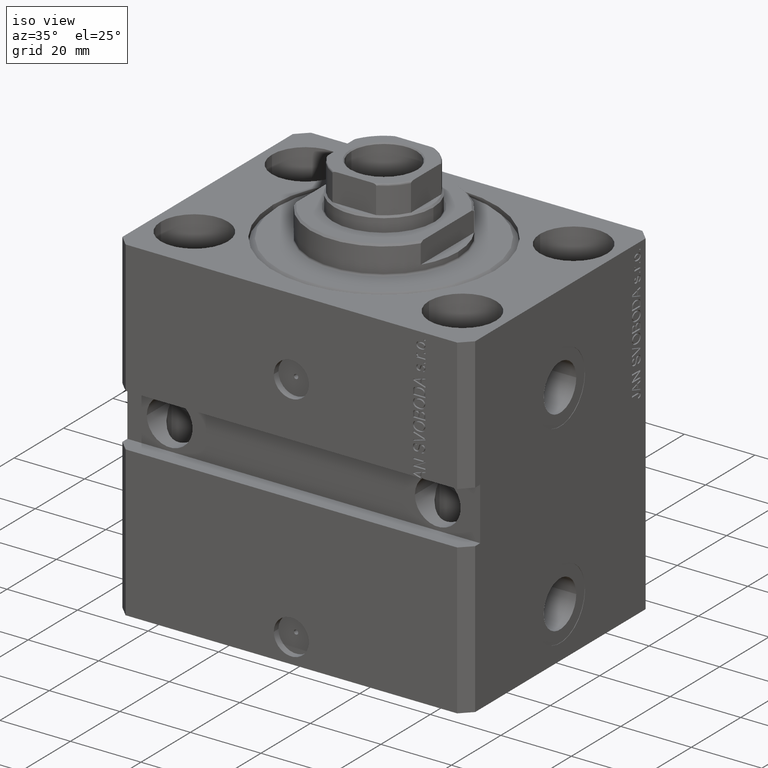
[diagram: clean part render]
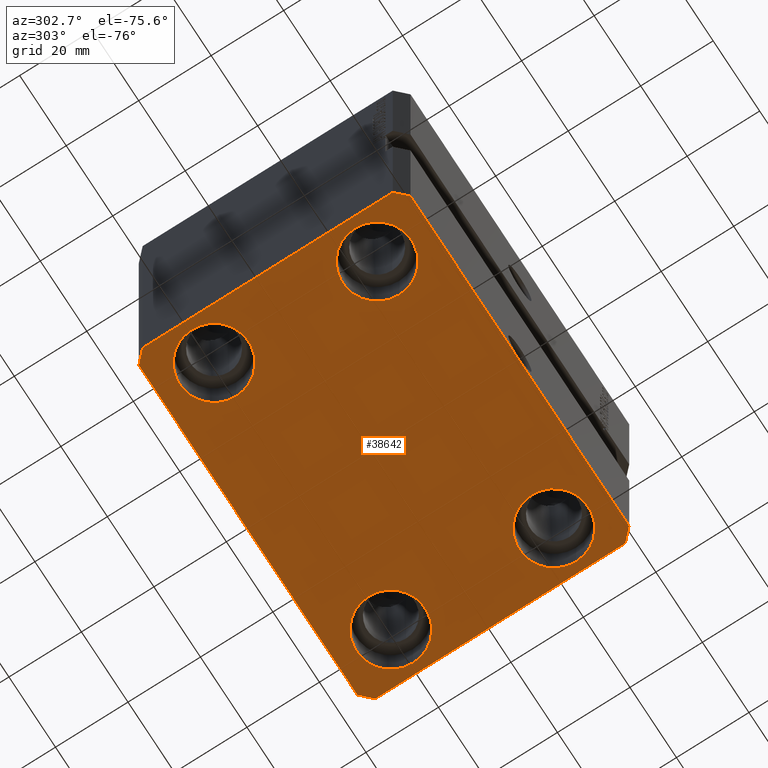
[diagram: tour spotlight — one face highlighted and labeled with its STEP entity id]
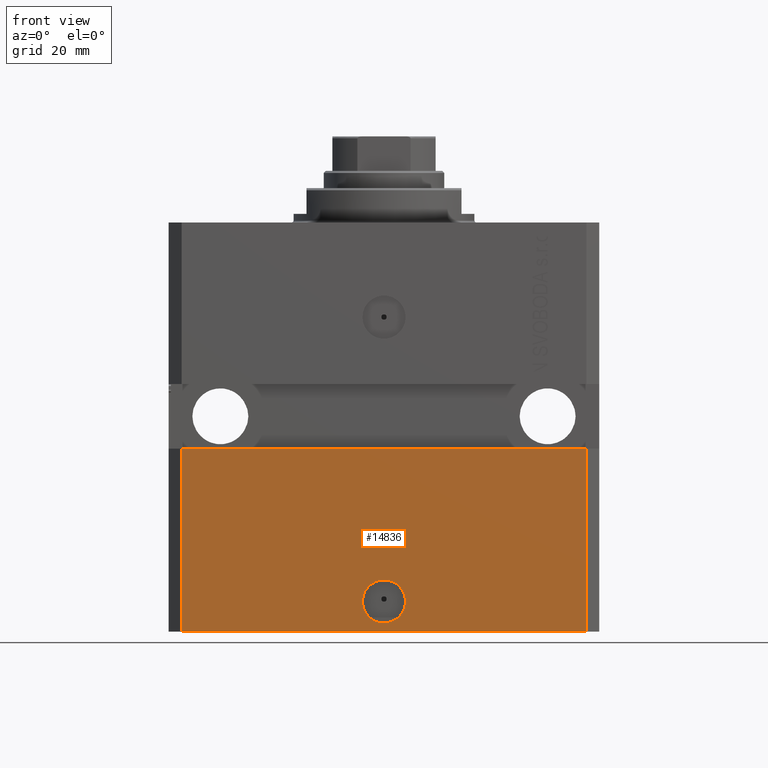
[diagram: tour spotlight — one face highlighted and labeled with its STEP entity id]
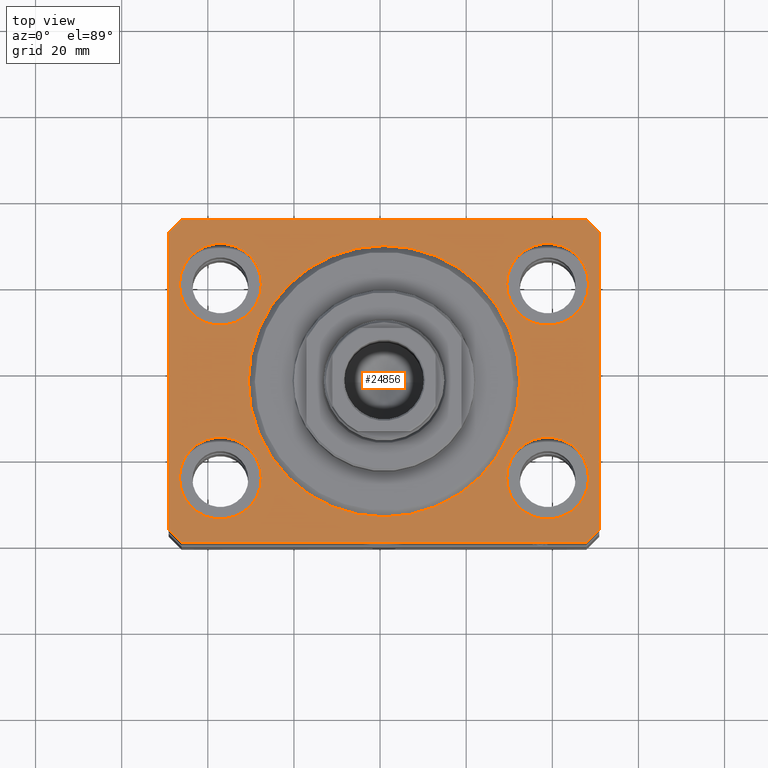
[diagram: tour spotlight — one face highlighted and labeled with its STEP entity id]
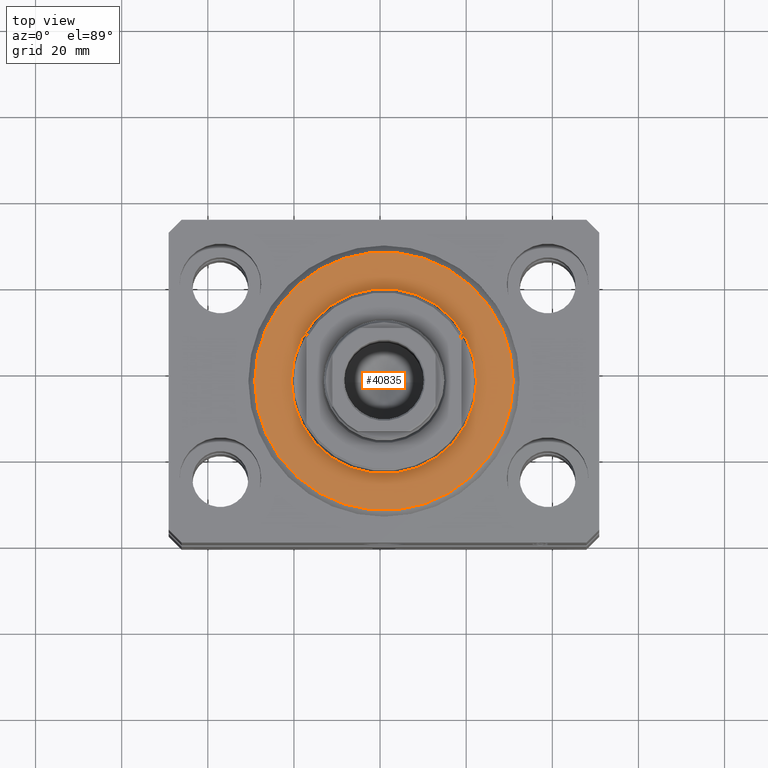
[diagram: tour spotlight — one face highlighted and labeled with its STEP entity id]
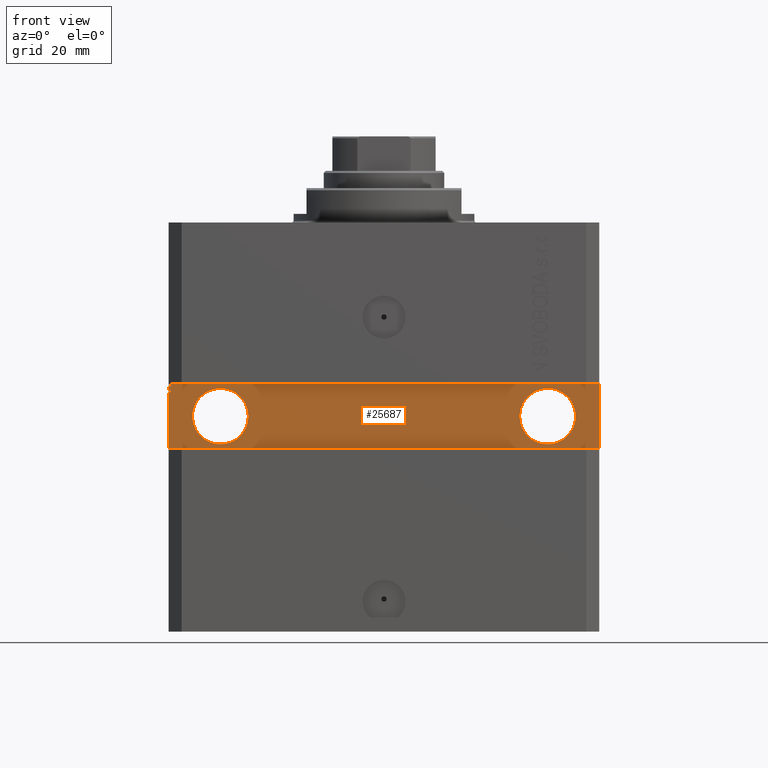
[diagram: tour spotlight — one face highlighted and labeled with its STEP entity id]
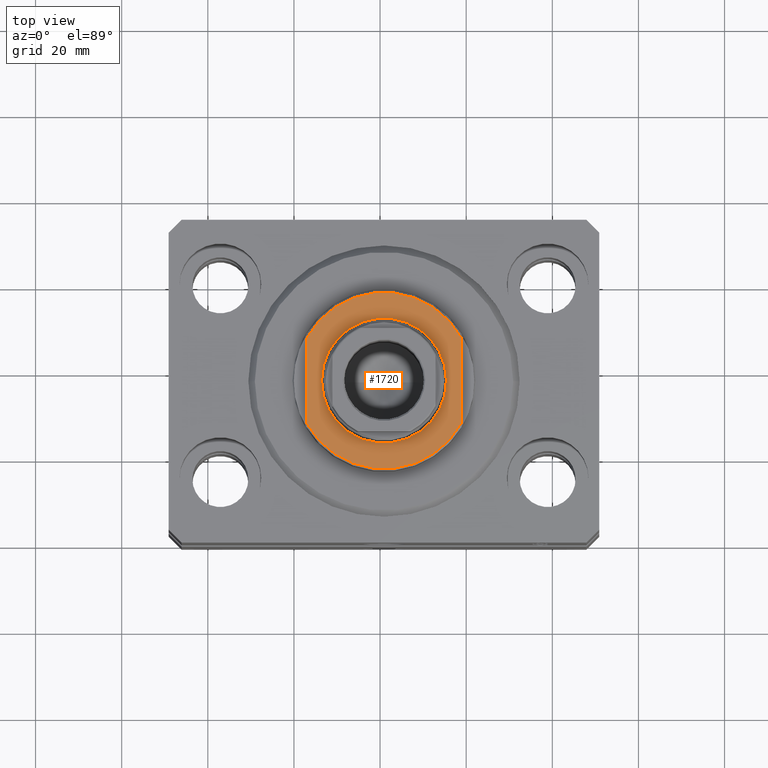
[diagram: tour spotlight — one face highlighted and labeled with its STEP entity id]
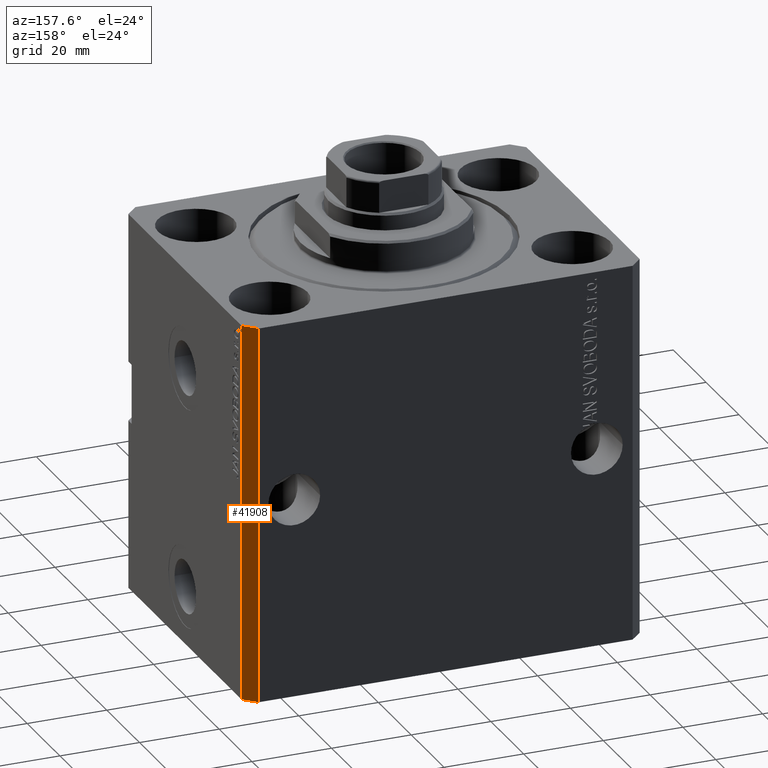
[diagram: tour spotlight — one face highlighted and labeled with its STEP entity id]
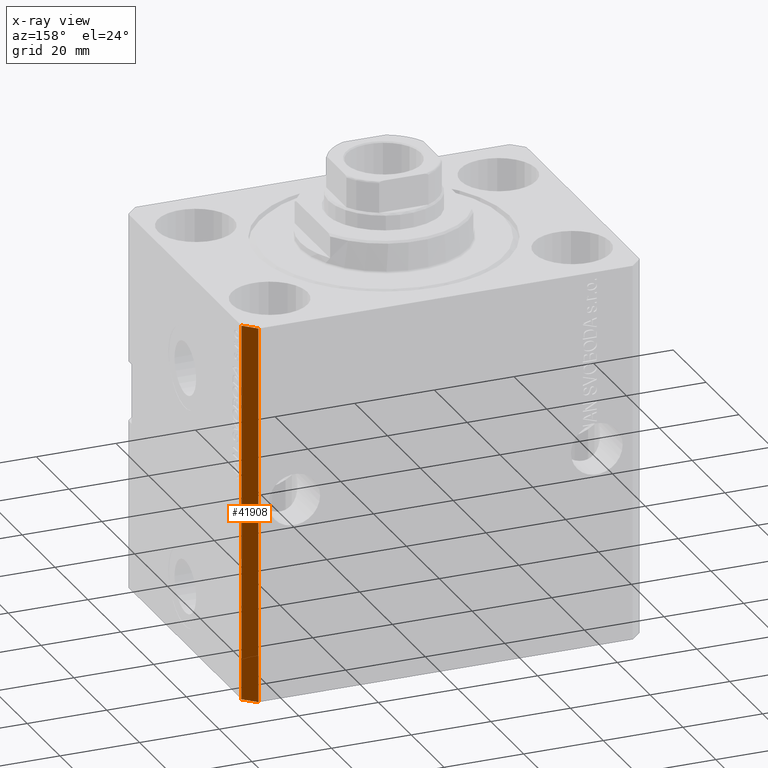
[diagram: x-ray of the same camera — body ghosted, this tour face saturated]
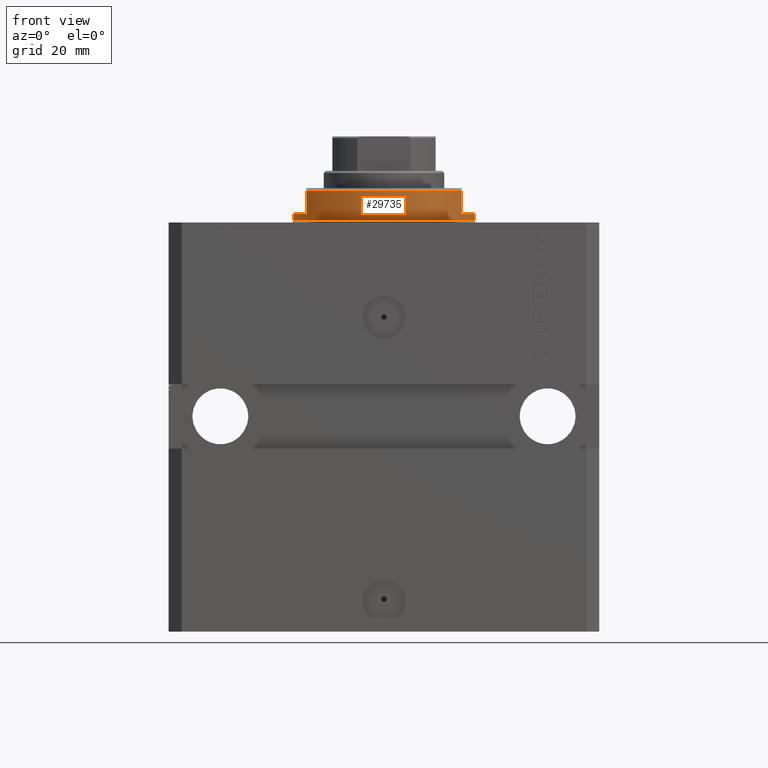
[diagram: tour spotlight — one face highlighted and labeled with its STEP entity id]
A machine part: a face-by-face anatomy tour. The part has 918 B-rep faces; the first image is the clean iso view, then the 8 largest visible faces are spotlighted one at a time (largest first), each with its STEP entity span.

Face 1 — auxiliary view, entity #38642. In plain terms, the highlighted planar face has unit normal (0, 0, 1).
Definition (entity closure, byte-faithful):
#347 = EDGE_LOOP ( 'NONE', ( #1185, #2698 ) ) ;
#621 = ORIENTED_EDGE ( 'NONE', *, *, #2909, .F. ) ;
#799 = VERTEX_POINT ( 'NONE', #22689 ) ;
#811 = CIRCLE ( 'NONE', #1527, 9.500000000000001776 ) ;
#1123 = ORIENTED_EDGE ( 'NONE', *, *, #39121, .F. ) ;
#1134 = VECTOR ( 'NONE', #17281, 1000.000000000000000 ) ;
#1162 = ORIENTED_EDGE ( 'NONE', *, *, #20574, .T. ) ;
#1185 = ORIENTED_EDGE ( 'NONE', *, *, #36561, .T. ) ;
#1250 = VERTEX_POINT ( 'NONE', #33552 ) ;
#1527 = AXIS2_PLACEMENT_3D ( 'NONE', #18973, #15338, #39876 ) ;
#1565 = CARTESIAN_POINT ( 'NONE',  ( -47.00000000000000000, -37.49999999999999289, -95.00000000000000000 ) ) ;
#1980 = CARTESIAN_POINT ( 'NONE',  ( 0.000000000000000000, 0.000000000000000000, -95.00000000000000000 ) ) ;
#2091 = VERTEX_POINT ( 'NONE', #41463 ) ;
#2201 = FACE_OUTER_BOUND ( 'NONE', #43277, .T. ) ;
#2437 = CARTESIAN_POINT ( 'NONE',  ( -38.00000000000000711, 22.50000000000000000, -95.00000000000000000 ) ) ;
#2464 = CARTESIAN_POINT ( 'NONE',  ( 47.00000000000056843, 37.49999999999999289, -95.00000000000000000 ) ) ;
#2596 = AXIS2_PLACEMENT_3D ( 'NONE', #31039, #38500, #24433 ) ;
#2656 = VECTOR ( 'NONE', #7951, 1000.000000000000000 ) ;
#2661 = VERTEX_POINT ( 'NONE', #21596 ) ;
#2698 = ORIENTED_EDGE ( 'NONE', *, *, #9012, .T. ) ;
#2909 = EDGE_CURVE ( 'NONE', #39071, #799, #16329, .T. ) ;
#3117 = VECTOR ( 'NONE', #15524, 1000.000000000000000 ) ;
#3615 = CARTESIAN_POINT ( 'NONE',  ( -47.50000000000000711, 22.50000000000000000, -95.00000000000000000 ) ) ;
#4247 = EDGE_LOOP ( 'NONE', ( #33621, #36440 ) ) ;
#5232 = VERTEX_POINT ( 'NONE', #25779 ) ;
#6011 = AXIS2_PLACEMENT_3D ( 'NONE', #27452, #44493, #33601 ) ;
#6289 = AXIS2_PLACEMENT_3D ( 'NONE', #1980, #44235, #13091 ) ;
#6846 = CARTESIAN_POINT ( 'NONE',  ( -38.00000000000000711, -22.50000000000000000, -95.00000000000000000 ) ) ;
#7075 = DIRECTION ( 'NONE',  ( -0.000000000000000000, -0.000000000000000000, 1.000000000000000000 ) ) ;
#7845 = ORIENTED_EDGE ( 'NONE', *, *, #15402, .T. ) ;
#7951 = DIRECTION ( 'NONE',  ( 1.000000000000000000, -1.476360405086644309E-16, 0.000000000000000000 ) ) ;
#8054 = AXIS2_PLACEMENT_3D ( 'NONE', #2437, #22886, #37194 ) ;
#8305 = EDGE_CURVE ( 'NONE', #11694, #44325, #811, .T. ) ;
#9012 = EDGE_CURVE ( 'NONE', #2661, #33384, #27641, .T. ) ;
#9323 = DIRECTION ( 'NONE',  ( 0.7071067811865483499, 0.7071067811865466846, 0.000000000000000000 ) ) ;
#9699 = PLANE ( 'NONE',  #6289 ) ;
#10394 = ORIENTED_EDGE ( 'NONE', *, *, #31206, .F. ) ;
#10542 = CARTESIAN_POINT ( 'NONE',  ( 50.00000000000051870, 34.49999999999995026, -95.00000000000000000 ) ) ;
#11694 = VERTEX_POINT ( 'NONE', #43305 ) ;
#11926 = AXIS2_PLACEMENT_3D ( 'NONE', #22384, #43509, #43055 ) ;
#12017 = CARTESIAN_POINT ( 'NONE',  ( -50.00000000000000000, -34.50000000000000000, -95.00000000000000000 ) ) ;
#12400 = EDGE_CURVE ( 'NONE', #39560, #5232, #13258, .T. ) ;
#12671 = CIRCLE ( 'NONE', #11926, 9.500000000000001776 ) ;
#12725 = AXIS2_PLACEMENT_3D ( 'NONE', #14565, #14794, #35944 ) ;
#12854 = EDGE_CURVE ( 'NONE', #1250, #34259, #25775, .T. ) ;
#12971 = VECTOR ( 'NONE', #9323, 1000.000000000000000 ) ;
#13091 = DIRECTION ( 'NONE',  ( 1.000000000000000000, 0.000000000000000000, -0.000000000000000000 ) ) ;
#13258 = CIRCLE ( 'NONE', #6011, 9.500000000000001776 ) ;
#13657 = LINE ( 'NONE', #38189, #1134 ) ;
#14370 = DIRECTION ( 'NONE',  ( 7.441712302741091634E-15, 1.000000000000000000, 0.000000000000000000 ) ) ;
#14565 = CARTESIAN_POINT ( 'NONE',  ( -38.00000000000000711, 22.50000000000000000, -95.00000000000000000 ) ) ;
#14748 = CARTESIAN_POINT ( 'NONE',  ( -47.50000000000000711, -22.50000000000000000, -95.00000000000000000 ) ) ;
#14794 = DIRECTION ( 'NONE',  ( -0.000000000000000000, -0.000000000000000000, 1.000000000000000000 ) ) ;
#15338 = DIRECTION ( 'NONE',  ( -0.000000000000000000, -0.000000000000000000, 1.000000000000000000 ) ) ;
#15402 = EDGE_CURVE ( 'NONE', #44325, #11694, #32827, .T. ) ;
#15482 = CARTESIAN_POINT ( 'NONE',  ( -28.50000000000000355, -22.50000000000000000, -95.00000000000000000 ) ) ;
#15524 = DIRECTION ( 'NONE',  ( 2.011273595335428326E-16, -1.000000000000000000, 0.000000000000000000 ) ) ;
#15636 = CIRCLE ( 'NONE', #12725, 9.500000000000001776 ) ;
#16306 = DIRECTION ( 'NONE',  ( -1.000000000000000000, 7.381802025433175941E-17, 0.000000000000000000 ) ) ;
#16329 = LINE ( 'NONE', #20415, #12971 ) ;
#16499 = FACE_BOUND ( 'NONE', #4247, .T. ) ;
#16830 = DIRECTION ( 'NONE',  ( 1.000000000000000000, 0.000000000000000000, 0.000000000000000000 ) ) ;
#17281 = DIRECTION ( 'NONE',  ( -0.7071067811865483499, -0.7071067811865466846, 0.000000000000000000 ) ) ;
#17645 = EDGE_LOOP ( 'NONE', ( #23897, #1162 ) ) ;
#17752 = VERTEX_POINT ( 'NONE', #41710 ) ;
#17776 = CARTESIAN_POINT ( 'NONE',  ( 50.00000000000000000, -34.50000000000000711, -95.00000000000000000 ) ) ;
#18973 = CARTESIAN_POINT ( 'NONE',  ( 38.00000000000000711, -22.50000000000000000, -95.00000000000000000 ) ) ;
#19274 = LINE ( 'NONE', #1565, #2656 ) ;
#19463 = FACE_BOUND ( 'NONE', #17645, .T. ) ;
#19903 = FACE_BOUND ( 'NONE', #34181, .T. ) ;
#20415 = CARTESIAN_POINT ( 'NONE',  ( 47.00000000000000000, -37.50000000000000711, -95.00000000000000000 ) ) ;
#20574 = EDGE_CURVE ( 'NONE', #26742, #37504, #12671, .T. ) ;
#20843 = VERTEX_POINT ( 'NONE', #30223 ) ;
#21334 = CARTESIAN_POINT ( 'NONE',  ( 47.00000000000000000, -37.50000000000000711, -95.00000000000000000 ) ) ;
#21445 = VECTOR ( 'NONE', #14370, 1000.000000000000000 ) ;
#21596 = CARTESIAN_POINT ( 'NONE',  ( -28.50000000000000355, 22.50000000000000000, -95.00000000000000000 ) ) ;
#21967 = CARTESIAN_POINT ( 'NONE',  ( 38.00000000000000711, -22.50000000000000000, -95.00000000000000000 ) ) ;
#22173 = CIRCLE ( 'NONE', #2596, 9.500000000000001776 ) ;
#22384 = CARTESIAN_POINT ( 'NONE',  ( -38.00000000000000711, -22.50000000000000000, -95.00000000000000000 ) ) ;
#22464 = DIRECTION ( 'NONE',  ( 0.7071067811865491270, -0.7071067811865459074, 0.000000000000000000 ) ) ;
#22689 = CARTESIAN_POINT ( 'NONE',  ( 50.00000000000000000, -34.50000000000000711, -95.00000000000000000 ) ) ;
#22886 = DIRECTION ( 'NONE',  ( -0.000000000000000000, -0.000000000000000000, 1.000000000000000000 ) ) ;
#23581 = EDGE_CURVE ( 'NONE', #5232, #39560, #22173, .T. ) ;
#23897 = ORIENTED_EDGE ( 'NONE', *, *, #41527, .T. ) ;
#24433 = DIRECTION ( 'NONE',  ( 1.000000000000000000, 0.000000000000000000, 0.000000000000000000 ) ) ;
#24604 = EDGE_CURVE ( 'NONE', #799, #39086, #28251, .T. ) ;
#24827 = AXIS2_PLACEMENT_3D ( 'NONE', #21967, #32205, #36060 ) ;
#25120 = VECTOR ( 'NONE', #16306, 1000.000000000000000 ) ;
#25154 = CARTESIAN_POINT ( 'NONE',  ( 47.50000000000000711, 22.50000000000001421, -95.00000000000000000 ) ) ;
#25775 = LINE ( 'NONE', #29179, #3117 ) ;
#25779 = CARTESIAN_POINT ( 'NONE',  ( 28.50000000000000355, 22.50000000000001421, -95.00000000000000000 ) ) ;
#26697 = AXIS2_PLACEMENT_3D ( 'NONE', #6846, #7075, #16830 ) ;
#26742 = VERTEX_POINT ( 'NONE', #15482 ) ;
#27452 = CARTESIAN_POINT ( 'NONE',  ( 38.00000000000000711, 22.50000000000001421, -95.00000000000000000 ) ) ;
#27641 = CIRCLE ( 'NONE', #8054, 9.500000000000001776 ) ;
#28251 = LINE ( 'NONE', #17776, #21445 ) ;
#28728 = DIRECTION ( 'NONE',  ( -0.7071067811865361374, 0.7071067811865588970, 0.000000000000000000 ) ) ;
#29179 = CARTESIAN_POINT ( 'NONE',  ( -50.00000000000001421, 34.50000000000000000, -95.00000000000000000 ) ) ;
#29226 = CARTESIAN_POINT ( 'NONE',  ( -50.00000000000000000, -34.50000000000000000, -95.00000000000000000 ) ) ;
#30223 = CARTESIAN_POINT ( 'NONE',  ( -47.00000000000000000, -37.49999999999999289, -95.00000000000000000 ) ) ;
#30373 = FACE_BOUND ( 'NONE', #347, .T. ) ;
#30719 = ORIENTED_EDGE ( 'NONE', *, *, #39106, .F. ) ;
#31039 = CARTESIAN_POINT ( 'NONE',  ( 38.00000000000000711, 22.50000000000001421, -95.00000000000000000 ) ) ;
#31206 = EDGE_CURVE ( 'NONE', #17752, #1250, #13657, .T. ) ;
#32205 = DIRECTION ( 'NONE',  ( -0.000000000000000000, -0.000000000000000000, 1.000000000000000000 ) ) ;
#32478 = CARTESIAN_POINT ( 'NONE',  ( 50.00000000000051870, 34.49999999999995026, -95.00000000000000000 ) ) ;
#32827 = CIRCLE ( 'NONE', #24827, 9.500000000000001776 ) ;
#33384 = VERTEX_POINT ( 'NONE', #3615 ) ;
#33552 = CARTESIAN_POINT ( 'NONE',  ( -50.00000000000001421, 34.50000000000000000, -95.00000000000000000 ) ) ;
#33601 = DIRECTION ( 'NONE',  ( 1.000000000000000000, 0.000000000000000000, 0.000000000000000000 ) ) ;
#33621 = ORIENTED_EDGE ( 'NONE', *, *, #23581, .T. ) ;
#34181 = EDGE_LOOP ( 'NONE', ( #7845, #44128 ) ) ;
#34259 = VERTEX_POINT ( 'NONE', #29226 ) ;
#34398 = EDGE_CURVE ( 'NONE', #39086, #2091, #41656, .T. ) ;
#34691 = CARTESIAN_POINT ( 'NONE',  ( 28.50000000000000355, -22.50000000000000000, -95.00000000000000000 ) ) ;
#35131 = ORIENTED_EDGE ( 'NONE', *, *, #12854, .F. ) ;
#35944 = DIRECTION ( 'NONE',  ( 1.000000000000000000, 0.000000000000000000, 0.000000000000000000 ) ) ;
#36060 = DIRECTION ( 'NONE',  ( 1.000000000000000000, 0.000000000000000000, 0.000000000000000000 ) ) ;
#36440 = ORIENTED_EDGE ( 'NONE', *, *, #12400, .T. ) ;
#36561 = EDGE_CURVE ( 'NONE', #33384, #2661, #15636, .T. ) ;
#36918 = EDGE_CURVE ( 'NONE', #2091, #17752, #44045, .T. ) ;
#37194 = DIRECTION ( 'NONE',  ( 1.000000000000000000, 0.000000000000000000, 0.000000000000000000 ) ) ;
#37504 = VERTEX_POINT ( 'NONE', #14748 ) ;
#38189 = CARTESIAN_POINT ( 'NONE',  ( -47.00000000000001421, 37.50000000000000000, -95.00000000000000000 ) ) ;
#38233 = CIRCLE ( 'NONE', #26697, 9.500000000000001776 ) ;
#38500 = DIRECTION ( 'NONE',  ( -0.000000000000000000, -0.000000000000000000, 1.000000000000000000 ) ) ;
#38642 = ADVANCED_FACE ( 'NONE', ( #19463, #19903, #16499, #30373, #2201 ), #9699, .F. ) ;
#39071 = VERTEX_POINT ( 'NONE', #21334 ) ;
#39086 = VERTEX_POINT ( 'NONE', #32478 ) ;
#39106 = EDGE_CURVE ( 'NONE', #34259, #20843, #43134, .T. ) ;
#39121 = EDGE_CURVE ( 'NONE', #20843, #39071, #19274, .T. ) ;
#39547 = VECTOR ( 'NONE', #28728, 1000.000000000000114 ) ;
#39560 = VERTEX_POINT ( 'NONE', #25154 ) ;
#39876 = DIRECTION ( 'NONE',  ( 1.000000000000000000, 0.000000000000000000, 0.000000000000000000 ) ) ;
#41463 = CARTESIAN_POINT ( 'NONE',  ( 47.00000000000056843, 37.49999999999999289, -95.00000000000000000 ) ) ;
#41527 = EDGE_CURVE ( 'NONE', #37504, #26742, #38233, .T. ) ;
#41656 = LINE ( 'NONE', #10542, #39547 ) ;
#41684 = ORIENTED_EDGE ( 'NONE', *, *, #24604, .F. ) ;
#41710 = CARTESIAN_POINT ( 'NONE',  ( -47.00000000000001421, 37.50000000000000000, -95.00000000000000000 ) ) ;
#42524 = ORIENTED_EDGE ( 'NONE', *, *, #36918, .F. ) ;
#42976 = ORIENTED_EDGE ( 'NONE', *, *, #34398, .F. ) ;
#43055 = DIRECTION ( 'NONE',  ( 1.000000000000000000, 0.000000000000000000, 0.000000000000000000 ) ) ;
#43134 = LINE ( 'NONE', #12017, #44004 ) ;
#43277 = EDGE_LOOP ( 'NONE', ( #42524, #42976, #41684, #621, #1123, #30719, #35131, #10394 ) ) ;
#43305 = CARTESIAN_POINT ( 'NONE',  ( 47.50000000000000711, -22.50000000000000000, -95.00000000000000000 ) ) ;
#43509 = DIRECTION ( 'NONE',  ( -0.000000000000000000, -0.000000000000000000, 1.000000000000000000 ) ) ;
#44004 = VECTOR ( 'NONE', #22464, 1000.000000000000114 ) ;
#44045 = LINE ( 'NONE', #2464, #25120 ) ;
#44128 = ORIENTED_EDGE ( 'NONE', *, *, #8305, .T. ) ;
#44235 = DIRECTION ( 'NONE',  ( 0.000000000000000000, 0.000000000000000000, 1.000000000000000000 ) ) ;
#44325 = VERTEX_POINT ( 'NONE', #34691 ) ;
#44493 = DIRECTION ( 'NONE',  ( -0.000000000000000000, -0.000000000000000000, 1.000000000000000000 ) ) ;

Face 2 — front view, entity #14836. In plain terms, the highlighted planar face has unit normal (-0, -1, 0).
Definition (entity closure, byte-faithful):
#603 = VECTOR ( 'NONE', #28482, 1000.000000000000000 ) ;
#660 = AXIS2_PLACEMENT_3D ( 'NONE', #21984, #32671, #8364 ) ;
#764 = LINE ( 'NONE', #41871, #603 ) ;
#1378 = ORIENTED_EDGE ( 'NONE', *, *, #8258, .T. ) ;
#1565 = CARTESIAN_POINT ( 'NONE',  ( -47.00000000000000000, -37.49999999999999289, -95.00000000000000000 ) ) ;
#2656 = VECTOR ( 'NONE', #7951, 1000.000000000000000 ) ;
#3046 = EDGE_CURVE ( 'NONE', #39237, #43668, #41989, .T. ) ;
#4472 = VERTEX_POINT ( 'NONE', #17251 ) ;
#4884 = ORIENTED_EDGE ( 'NONE', *, *, #39121, .T. ) ;
#5164 = VECTOR ( 'NONE', #14887, 1000.000000000000000 ) ;
#7839 = VECTOR ( 'NONE', #8878, 1000.000000000000000 ) ;
#7951 = DIRECTION ( 'NONE',  ( 1.000000000000000000, -1.476360405086644309E-16, 0.000000000000000000 ) ) ;
#8258 = EDGE_CURVE ( 'NONE', #39071, #20850, #18080, .T. ) ;
#8364 = DIRECTION ( 'NONE',  ( 1.000000000000000000, 0.000000000000000000, 0.000000000000000000 ) ) ;
#8878 = DIRECTION ( 'NONE',  ( 1.000000000000000000, 1.387778780781445676E-16, 0.000000000000000000 ) ) ;
#12061 = CIRCLE ( 'NONE', #38902, 5.000000000000006217 ) ;
#12714 = CARTESIAN_POINT ( 'NONE',  ( -50.00000000000001421, -37.50000000000000711, -52.50000000000000000 ) ) ;
#14693 = EDGE_LOOP ( 'NONE', ( #20711, #32601, #4884, #1378 ) ) ;
#14836 = ADVANCED_FACE ( 'NONE', ( #23423, #22976 ), #19775, .T. ) ;
#14887 = DIRECTION ( 'NONE',  ( 0.000000000000000000, 0.000000000000000000, 1.000000000000000000 ) ) ;
#15445 = LINE ( 'NONE', #12714, #7839 ) ;
#16810 = DIRECTION ( 'NONE',  ( -1.476360405086644556E-16, -1.000000000000000000, 0.000000000000000000 ) ) ;
#16972 = CARTESIAN_POINT ( 'NONE',  ( 5.000000000000000888, -37.50000000000000000, -88.00000000000000000 ) ) ;
#17251 = CARTESIAN_POINT ( 'NONE',  ( -46.99999999999998579, -37.50000000000000711, -52.50000000000000000 ) ) ;
#18080 = LINE ( 'NONE', #31955, #5164 ) ;
#18865 = EDGE_LOOP ( 'NONE', ( #25244, #43942 ) ) ;
#19274 = LINE ( 'NONE', #1565, #2656 ) ;
#19591 = CARTESIAN_POINT ( 'NONE',  ( -5.000000000000011546, -37.50000000000000000, -88.00000000000000000 ) ) ;
#19775 = PLANE ( 'NONE',  #25561 ) ;
#20711 = ORIENTED_EDGE ( 'NONE', *, *, #42662, .F. ) ;
#20843 = VERTEX_POINT ( 'NONE', #30223 ) ;
#20850 = VERTEX_POINT ( 'NONE', #40655 ) ;
#21334 = CARTESIAN_POINT ( 'NONE',  ( 47.00000000000000000, -37.50000000000000711, -95.00000000000000000 ) ) ;
#21984 = CARTESIAN_POINT ( 'NONE',  ( -5.536351519074916863E-15, -37.50000000000000000, -88.00000000000000000 ) ) ;
#22976 = FACE_OUTER_BOUND ( 'NONE', #14693, .T. ) ;
#23423 = FACE_BOUND ( 'NONE', #18865, .T. ) ;
#25244 = ORIENTED_EDGE ( 'NONE', *, *, #3046, .F. ) ;
#25561 = AXIS2_PLACEMENT_3D ( 'NONE', #34326, #16810, #37282 ) ;
#25996 = EDGE_CURVE ( 'NONE', #43668, #39237, #12061, .T. ) ;
#28342 = DIRECTION ( 'NONE',  ( 1.176083712526788232E-16, -1.000000000000000000, 0.000000000000000000 ) ) ;
#28482 = DIRECTION ( 'NONE',  ( 0.000000000000000000, 0.000000000000000000, 1.000000000000000000 ) ) ;
#30223 = CARTESIAN_POINT ( 'NONE',  ( -47.00000000000000000, -37.49999999999999289, -95.00000000000000000 ) ) ;
#31955 = CARTESIAN_POINT ( 'NONE',  ( 47.00000000000000000, -37.50000000000000711, -95.00000000000000000 ) ) ;
#32601 = ORIENTED_EDGE ( 'NONE', *, *, #43389, .F. ) ;
#32671 = DIRECTION ( 'NONE',  ( 1.176083712526788232E-16, -1.000000000000000000, 0.000000000000000000 ) ) ;
#34326 = CARTESIAN_POINT ( 'NONE',  ( -47.00000000000000000, -37.49999999999999289, -95.00000000000000000 ) ) ;
#35391 = CARTESIAN_POINT ( 'NONE',  ( -5.536351519074916863E-15, -37.50000000000000000, -88.00000000000000000 ) ) ;
#37282 = DIRECTION ( 'NONE',  ( 1.000000000000000000, -1.476360405086644556E-16, 0.000000000000000000 ) ) ;
#38902 = AXIS2_PLACEMENT_3D ( 'NONE', #35391, #28342, #42638 ) ;
#39071 = VERTEX_POINT ( 'NONE', #21334 ) ;
#39121 = EDGE_CURVE ( 'NONE', #20843, #39071, #19274, .T. ) ;
#39237 = VERTEX_POINT ( 'NONE', #16972 ) ;
#40655 = CARTESIAN_POINT ( 'NONE',  ( 47.00000000000000000, -37.49999999999999289, -52.50000000000000000 ) ) ;
#41871 = CARTESIAN_POINT ( 'NONE',  ( -47.00000000000000000, -37.49999999999999289, -95.00000000000000000 ) ) ;
#41989 = CIRCLE ( 'NONE', #660, 5.000000000000006217 ) ;
#42638 = DIRECTION ( 'NONE',  ( 1.000000000000000000, 0.000000000000000000, 0.000000000000000000 ) ) ;
#42662 = EDGE_CURVE ( 'NONE', #4472, #20850, #15445, .T. ) ;
#43389 = EDGE_CURVE ( 'NONE', #20843, #4472, #764, .T. ) ;
#43668 = VERTEX_POINT ( 'NONE', #19591 ) ;
#43942 = ORIENTED_EDGE ( 'NONE', *, *, #25996, .F. ) ;

Face 3 — top view, entity #24856. In plain terms, the highlighted planar face has unit normal (0, 0, 1).
Definition (entity closure, byte-faithful):
#106 = DIRECTION ( 'NONE',  ( 0.000000000000000000, 0.000000000000000000, 1.000000000000000000 ) ) ;
#120 = CARTESIAN_POINT ( 'NONE',  ( 38.00000000000000711, 22.50000000000001421, 0.000000000000000000 ) ) ;
#323 = DIRECTION ( 'NONE',  ( 1.000000000000000000, 0.000000000000000000, 0.000000000000000000 ) ) ;
#447 = AXIS2_PLACEMENT_3D ( 'NONE', #120, #3960, #28284 ) ;
#456 = DIRECTION ( 'NONE',  ( -1.000000000000000000, 7.381802025433175941E-17, 0.000000000000000000 ) ) ;
#458 = EDGE_CURVE ( 'NONE', #23648, #9910, #1535, .T. ) ;
#626 = DIRECTION ( 'NONE',  ( 1.000000000000000000, 0.000000000000000000, 0.000000000000000000 ) ) ;
#674 = VERTEX_POINT ( 'NONE', #41385 ) ;
#691 = CIRCLE ( 'NONE', #26095, 9.500000000000001776 ) ;
#1535 = LINE ( 'NONE', #39466, #24518 ) ;
#1545 = DIRECTION ( 'NONE',  ( 1.000000000000000000, 0.000000000000000000, -0.000000000000000000 ) ) ;
#1680 = CIRCLE ( 'NONE', #27090, 9.500000000000001776 ) ;
#1686 = CARTESIAN_POINT ( 'NONE',  ( -47.00000000000001421, 37.50000000000000000, 0.000000000000000000 ) ) ;
#1762 = CARTESIAN_POINT ( 'NONE',  ( -47.00000000000000000, -37.49999999999999289, 0.000000000000000000 ) ) ;
#1992 = CARTESIAN_POINT ( 'NONE',  ( 0.000000000000000000, 0.000000000000000000, 0.000000000000000000 ) ) ;
#2212 = LINE ( 'NONE', #1762, #3229 ) ;
#2877 = ORIENTED_EDGE ( 'NONE', *, *, #15930, .T. ) ;
#3229 = VECTOR ( 'NONE', #44020, 1000.000000000000000 ) ;
#3341 = EDGE_LOOP ( 'NONE', ( #27972, #4142 ) ) ;
#3348 = DIRECTION ( 'NONE',  ( 0.000000000000000000, 0.000000000000000000, 1.000000000000000000 ) ) ;
#3952 = EDGE_CURVE ( 'NONE', #674, #32067, #691, .T. ) ;
#3960 = DIRECTION ( 'NONE',  ( 0.000000000000000000, 0.000000000000000000, 1.000000000000000000 ) ) ;
#4142 = ORIENTED_EDGE ( 'NONE', *, *, #17684, .F. ) ;
#4437 = VERTEX_POINT ( 'NONE', #5928 ) ;
#4915 = EDGE_CURVE ( 'NONE', #18445, #33409, #23196, .T. ) ;
#5242 = VERTEX_POINT ( 'NONE', #1686 ) ;
#5401 = FACE_OUTER_BOUND ( 'NONE', #9132, .T. ) ;
#5626 = PLANE ( 'NONE',  #43229 ) ;
#5893 = LINE ( 'NONE', #37681, #14704 ) ;
#5928 = CARTESIAN_POINT ( 'NONE',  ( 31.50000000000000000, 0.000000000000000000, 0.000000000000000000 ) ) ;
#6032 = DIRECTION ( 'NONE',  ( 1.000000000000000000, 0.000000000000000000, 0.000000000000000000 ) ) ;
#6863 = LINE ( 'NONE', #20705, #11959 ) ;
#7278 = LINE ( 'NONE', #31573, #22133 ) ;
#8168 = VERTEX_POINT ( 'NONE', #23796 ) ;
#8363 = DIRECTION ( 'NONE',  ( 0.7071067811865491270, -0.7071067811865459074, 0.000000000000000000 ) ) ;
#9132 = EDGE_LOOP ( 'NONE', ( #12252, #2877, #42488, #29691, #16977, #10903, #23013, #9159 ) ) ;
#9159 = ORIENTED_EDGE ( 'NONE', *, *, #34192, .T. ) ;
#9274 = FACE_BOUND ( 'NONE', #3341, .T. ) ;
#9315 = CIRCLE ( 'NONE', #34682, 31.50000000000000000 ) ;
#9773 = CARTESIAN_POINT ( 'NONE',  ( 38.00000000000000711, 22.50000000000001421, 0.000000000000000000 ) ) ;
#9910 = VERTEX_POINT ( 'NONE', #38688 ) ;
#10389 = EDGE_CURVE ( 'NONE', #30987, #28622, #37136, .T. ) ;
#10696 = CARTESIAN_POINT ( 'NONE',  ( 47.00000000000056843, 37.49999999999999289, 0.000000000000000000 ) ) ;
#10903 = ORIENTED_EDGE ( 'NONE', *, *, #14100, .T. ) ;
#11493 = EDGE_LOOP ( 'NONE', ( #44607, #16764 ) ) ;
#11959 = VECTOR ( 'NONE', #44142, 1000.000000000000000 ) ;
#12252 = ORIENTED_EDGE ( 'NONE', *, *, #35059, .T. ) ;
#12499 = ORIENTED_EDGE ( 'NONE', *, *, #33125, .F. ) ;
#12627 = CIRCLE ( 'NONE', #18437, 9.500000000000001776 ) ;
#13043 = CARTESIAN_POINT ( 'NONE',  ( -47.50000000000000711, -22.50000000000000000, 0.000000000000000000 ) ) ;
#13750 = CARTESIAN_POINT ( 'NONE',  ( 50.00000000000000000, -34.50000000000000711, 0.000000000000000000 ) ) ;
#13835 = CARTESIAN_POINT ( 'NONE',  ( -28.50000000000000355, 22.50000000000000000, 0.000000000000000000 ) ) ;
#13972 = EDGE_LOOP ( 'NONE', ( #29100, #12499 ) ) ;
#14024 = VECTOR ( 'NONE', #17534, 1000.000000000000000 ) ;
#14100 = EDGE_CURVE ( 'NONE', #8168, #17105, #35511, .T. ) ;
#14218 = CARTESIAN_POINT ( 'NONE',  ( 38.00000000000000711, -22.50000000000000000, 0.000000000000000000 ) ) ;
#14704 = VECTOR ( 'NONE', #37242, 1000.000000000000000 ) ;
#15129 = CARTESIAN_POINT ( 'NONE',  ( 50.00000000000051870, 34.49999999999995026, 0.000000000000000000 ) ) ;
#15423 = VECTOR ( 'NONE', #27414, 1000.000000000000000 ) ;
#15930 = EDGE_CURVE ( 'NONE', #5242, #40058, #5893, .T. ) ;
#16283 = FACE_BOUND ( 'NONE', #13972, .T. ) ;
#16367 = EDGE_CURVE ( 'NONE', #17105, #30464, #38052, .T. ) ;
#16686 = CARTESIAN_POINT ( 'NONE',  ( 0.000000000000000000, 0.000000000000000000, 0.000000000000000000 ) ) ;
#16764 = ORIENTED_EDGE ( 'NONE', *, *, #26252, .F. ) ;
#16866 = CARTESIAN_POINT ( 'NONE',  ( -50.00000000000001421, 34.50000000000000000, 0.000000000000000000 ) ) ;
#16977 = ORIENTED_EDGE ( 'NONE', *, *, #20290, .T. ) ;
#17105 = VERTEX_POINT ( 'NONE', #35472 ) ;
#17399 = DIRECTION ( 'NONE',  ( 0.000000000000000000, 0.000000000000000000, 1.000000000000000000 ) ) ;
#17534 = DIRECTION ( 'NONE',  ( 0.7071067811865483499, 0.7071067811865466846, 0.000000000000000000 ) ) ;
#17684 = EDGE_CURVE ( 'NONE', #32067, #674, #1680, .T. ) ;
#18425 = CARTESIAN_POINT ( 'NONE',  ( 50.00000000000051870, 34.49999999999995026, 0.000000000000000000 ) ) ;
#18437 = AXIS2_PLACEMENT_3D ( 'NONE', #21670, #35541, #27817 ) ;
#18445 = VERTEX_POINT ( 'NONE', #24071 ) ;
#18941 = ORIENTED_EDGE ( 'NONE', *, *, #44664, .F. ) ;
#20290 = EDGE_CURVE ( 'NONE', #9910, #8168, #2212, .T. ) ;
#20705 = CARTESIAN_POINT ( 'NONE',  ( -50.00000000000001421, 34.50000000000000000, 0.000000000000000000 ) ) ;
#20787 = DIRECTION ( 'NONE',  ( 0.000000000000000000, 0.000000000000000000, 1.000000000000000000 ) ) ;
#21290 = EDGE_LOOP ( 'NONE', ( #22279, #40128 ) ) ;
#21670 = CARTESIAN_POINT ( 'NONE',  ( -38.00000000000000711, -22.50000000000000000, 0.000000000000000000 ) ) ;
#21674 = AXIS2_PLACEMENT_3D ( 'NONE', #16686, #37151, #6032 ) ;
#21756 = VERTEX_POINT ( 'NONE', #44814 ) ;
#21844 = CARTESIAN_POINT ( 'NONE',  ( 28.50000000000000355, -22.50000000000000000, 0.000000000000000000 ) ) ;
#21885 = EDGE_CURVE ( 'NONE', #40058, #23648, #6863, .T. ) ;
#22133 = VECTOR ( 'NONE', #456, 1000.000000000000000 ) ;
#22279 = ORIENTED_EDGE ( 'NONE', *, *, #27166, .F. ) ;
#22893 = FACE_BOUND ( 'NONE', #25886, .T. ) ;
#23013 = ORIENTED_EDGE ( 'NONE', *, *, #16367, .T. ) ;
#23196 = CIRCLE ( 'NONE', #26840, 9.500000000000001776 ) ;
#23534 = CIRCLE ( 'NONE', #35968, 9.500000000000001776 ) ;
#23648 = VERTEX_POINT ( 'NONE', #38725 ) ;
#23796 = CARTESIAN_POINT ( 'NONE',  ( 47.00000000000000000, -37.50000000000000711, 0.000000000000000000 ) ) ;
#24060 = CARTESIAN_POINT ( 'NONE',  ( 28.50000000000000355, 22.50000000000001421, 0.000000000000000000 ) ) ;
#24071 = CARTESIAN_POINT ( 'NONE',  ( -47.50000000000000711, 22.50000000000000000, 0.000000000000000000 ) ) ;
#24518 = VECTOR ( 'NONE', #8363, 1000.000000000000114 ) ;
#24559 = VERTEX_POINT ( 'NONE', #13043 ) ;
#24856 = ADVANCED_FACE ( 'NONE', ( #16283, #9274, #29714, #36526, #22893, #5401 ), #5626, .T. ) ;
#25050 = CARTESIAN_POINT ( 'NONE',  ( 47.00000000000000000, -37.50000000000000711, 0.000000000000000000 ) ) ;
#25161 = CIRCLE ( 'NONE', #32433, 9.500000000000001776 ) ;
#25694 = CARTESIAN_POINT ( 'NONE',  ( -28.50000000000000355, -22.50000000000000000, 0.000000000000000000 ) ) ;
#25829 = LINE ( 'NONE', #15129, #36600 ) ;
#25886 = EDGE_LOOP ( 'NONE', ( #40798, #18941 ) ) ;
#26095 = AXIS2_PLACEMENT_3D ( 'NONE', #27448, #3348, #41283 ) ;
#26252 = EDGE_CURVE ( 'NONE', #28622, #30987, #38183, .T. ) ;
#26829 = DIRECTION ( 'NONE',  ( 0.000000000000000000, 0.000000000000000000, 1.000000000000000000 ) ) ;
#26840 = AXIS2_PLACEMENT_3D ( 'NONE', #38324, #31518, #626 ) ;
#27090 = AXIS2_PLACEMENT_3D ( 'NONE', #14218, #17399, #28320 ) ;
#27166 = EDGE_CURVE ( 'NONE', #33409, #18445, #25161, .T. ) ;
#27414 = DIRECTION ( 'NONE',  ( 7.441712302741091634E-15, 1.000000000000000000, 0.000000000000000000 ) ) ;
#27448 = CARTESIAN_POINT ( 'NONE',  ( 38.00000000000000711, -22.50000000000000000, 0.000000000000000000 ) ) ;
#27627 = CARTESIAN_POINT ( 'NONE',  ( -38.00000000000000711, 22.50000000000000000, 0.000000000000000000 ) ) ;
#27817 = DIRECTION ( 'NONE',  ( 1.000000000000000000, 0.000000000000000000, 0.000000000000000000 ) ) ;
#27972 = ORIENTED_EDGE ( 'NONE', *, *, #3952, .F. ) ;
#28284 = DIRECTION ( 'NONE',  ( 1.000000000000000000, 0.000000000000000000, 0.000000000000000000 ) ) ;
#28320 = DIRECTION ( 'NONE',  ( 1.000000000000000000, 0.000000000000000000, 0.000000000000000000 ) ) ;
#28456 = VERTEX_POINT ( 'NONE', #25694 ) ;
#28491 = CARTESIAN_POINT ( 'NONE',  ( -38.00000000000000711, -22.50000000000000000, 0.000000000000000000 ) ) ;
#28622 = VERTEX_POINT ( 'NONE', #24060 ) ;
#29100 = ORIENTED_EDGE ( 'NONE', *, *, #33137, .F. ) ;
#29691 = ORIENTED_EDGE ( 'NONE', *, *, #458, .T. ) ;
#29709 = DIRECTION ( 'NONE',  ( 1.000000000000000000, 0.000000000000000000, 0.000000000000000000 ) ) ;
#29714 = FACE_BOUND ( 'NONE', #11493, .T. ) ;
#30449 = DIRECTION ( 'NONE',  ( 1.000000000000000000, 0.000000000000000000, 0.000000000000000000 ) ) ;
#30464 = VERTEX_POINT ( 'NONE', #18425 ) ;
#30987 = VERTEX_POINT ( 'NONE', #42552 ) ;
#31518 = DIRECTION ( 'NONE',  ( 0.000000000000000000, 0.000000000000000000, 1.000000000000000000 ) ) ;
#31573 = CARTESIAN_POINT ( 'NONE',  ( 47.00000000000056843, 37.49999999999999289, 0.000000000000000000 ) ) ;
#32067 = VERTEX_POINT ( 'NONE', #21844 ) ;
#32433 = AXIS2_PLACEMENT_3D ( 'NONE', #27627, #20787, #34660 ) ;
#32865 = DIRECTION ( 'NONE',  ( -0.7071067811865361374, 0.7071067811865588970, 0.000000000000000000 ) ) ;
#33125 = EDGE_CURVE ( 'NONE', #24559, #28456, #23534, .T. ) ;
#33137 = EDGE_CURVE ( 'NONE', #28456, #24559, #12627, .T. ) ;
#33409 = VERTEX_POINT ( 'NONE', #13835 ) ;
#34192 = EDGE_CURVE ( 'NONE', #30464, #41492, #25829, .T. ) ;
#34660 = DIRECTION ( 'NONE',  ( 1.000000000000000000, 0.000000000000000000, 0.000000000000000000 ) ) ;
#34682 = AXIS2_PLACEMENT_3D ( 'NONE', #39700, #36079, #29709 ) ;
#35059 = EDGE_CURVE ( 'NONE', #41492, #5242, #7278, .T. ) ;
#35472 = CARTESIAN_POINT ( 'NONE',  ( 50.00000000000000000, -34.50000000000000711, 0.000000000000000000 ) ) ;
#35511 = LINE ( 'NONE', #25050, #14024 ) ;
#35541 = DIRECTION ( 'NONE',  ( 0.000000000000000000, 0.000000000000000000, 1.000000000000000000 ) ) ;
#35968 = AXIS2_PLACEMENT_3D ( 'NONE', #28491, #106, #323 ) ;
#36079 = DIRECTION ( 'NONE',  ( 0.000000000000000000, 0.000000000000000000, 1.000000000000000000 ) ) ;
#36526 = FACE_BOUND ( 'NONE', #21290, .T. ) ;
#36600 = VECTOR ( 'NONE', #32865, 1000.000000000000114 ) ;
#37136 = CIRCLE ( 'NONE', #44406, 9.500000000000001776 ) ;
#37151 = DIRECTION ( 'NONE',  ( 0.000000000000000000, 0.000000000000000000, 1.000000000000000000 ) ) ;
#37242 = DIRECTION ( 'NONE',  ( -0.7071067811865483499, -0.7071067811865466846, 0.000000000000000000 ) ) ;
#37681 = CARTESIAN_POINT ( 'NONE',  ( -47.00000000000001421, 37.50000000000000000, 0.000000000000000000 ) ) ;
#38052 = LINE ( 'NONE', #13750, #15423 ) ;
#38183 = CIRCLE ( 'NONE', #447, 9.500000000000001776 ) ;
#38324 = CARTESIAN_POINT ( 'NONE',  ( -38.00000000000000711, 22.50000000000000000, 0.000000000000000000 ) ) ;
#38688 = CARTESIAN_POINT ( 'NONE',  ( -47.00000000000000000, -37.49999999999999289, 0.000000000000000000 ) ) ;
#38725 = CARTESIAN_POINT ( 'NONE',  ( -50.00000000000000000, -34.50000000000000000, 0.000000000000000000 ) ) ;
#39466 = CARTESIAN_POINT ( 'NONE',  ( -50.00000000000000000, -34.50000000000000000, 0.000000000000000000 ) ) ;
#39700 = CARTESIAN_POINT ( 'NONE',  ( 0.000000000000000000, 0.000000000000000000, 0.000000000000000000 ) ) ;
#39705 = DIRECTION ( 'NONE',  ( 0.000000000000000000, 0.000000000000000000, 1.000000000000000000 ) ) ;
#40058 = VERTEX_POINT ( 'NONE', #16866 ) ;
#40128 = ORIENTED_EDGE ( 'NONE', *, *, #4915, .F. ) ;
#40798 = ORIENTED_EDGE ( 'NONE', *, *, #42124, .F. ) ;
#41283 = DIRECTION ( 'NONE',  ( 1.000000000000000000, 0.000000000000000000, 0.000000000000000000 ) ) ;
#41385 = CARTESIAN_POINT ( 'NONE',  ( 47.50000000000000711, -22.50000000000000000, 0.000000000000000000 ) ) ;
#41492 = VERTEX_POINT ( 'NONE', #10696 ) ;
#41967 = CIRCLE ( 'NONE', #21674, 31.50000000000000000 ) ;
#42124 = EDGE_CURVE ( 'NONE', #4437, #21756, #9315, .T. ) ;
#42488 = ORIENTED_EDGE ( 'NONE', *, *, #21885, .T. ) ;
#42552 = CARTESIAN_POINT ( 'NONE',  ( 47.50000000000000711, 22.50000000000001421, 0.000000000000000000 ) ) ;
#43229 = AXIS2_PLACEMENT_3D ( 'NONE', #1992, #39705, #1545 ) ;
#44020 = DIRECTION ( 'NONE',  ( 1.000000000000000000, -1.476360405086644309E-16, 0.000000000000000000 ) ) ;
#44142 = DIRECTION ( 'NONE',  ( 2.011273595335428326E-16, -1.000000000000000000, 0.000000000000000000 ) ) ;
#44406 = AXIS2_PLACEMENT_3D ( 'NONE', #9773, #26829, #30449 ) ;
#44607 = ORIENTED_EDGE ( 'NONE', *, *, #10389, .F. ) ;
#44664 = EDGE_CURVE ( 'NONE', #21756, #4437, #41967, .T. ) ;
#44814 = CARTESIAN_POINT ( 'NONE',  ( -31.50000000000000000, 3.857637417314162689E-15, 0.000000000000000000 ) ) ;

Face 4 — top view, entity #40835. In plain terms, the highlighted planar face has unit normal (0, 0, -1).
Definition (entity closure, byte-faithful):
#1644 = VERTEX_POINT ( 'NONE', #3914 ) ;
#3914 = CARTESIAN_POINT ( 'NONE',  ( -21.50000000000000000, 2.632990618166809630E-15, -2.168404344971008868E-16 ) ) ;
#4509 = CIRCLE ( 'NONE', #21189, 21.50000000000000000 ) ;
#7800 = DIRECTION ( 'NONE',  ( 0.000000000000000000, 0.000000000000000000, 1.000000000000000000 ) ) ;
#8292 = ORIENTED_EDGE ( 'NONE', *, *, #30662, .T. ) ;
#9281 = AXIS2_PLACEMENT_3D ( 'NONE', #35962, #7800, #39581 ) ;
#10218 = EDGE_LOOP ( 'NONE', ( #43548, #30488 ) ) ;
#13851 = DIRECTION ( 'NONE',  ( 0.000000000000000000, 0.000000000000000000, 1.000000000000000000 ) ) ;
#14487 = EDGE_CURVE ( 'NONE', #28025, #1644, #4509, .T. ) ;
#16135 = VERTEX_POINT ( 'NONE', #32886 ) ;
#17550 = CARTESIAN_POINT ( 'NONE',  ( 0.000000000000000000, 0.000000000000000000, 0.000000000000000000 ) ) ;
#17606 = DIRECTION ( 'NONE',  ( -0.000000000000000000, -0.000000000000000000, -1.000000000000000000 ) ) ;
#17936 = DIRECTION ( 'NONE',  ( 1.000000000000000000, 0.000000000000000000, 0.000000000000000000 ) ) ;
#18501 = AXIS2_PLACEMENT_3D ( 'NONE', #44466, #17606, #34897 ) ;
#18827 = VERTEX_POINT ( 'NONE', #24464 ) ;
#19825 = CARTESIAN_POINT ( 'NONE',  ( 0.000000000000000000, 0.000000000000000000, 0.000000000000000000 ) ) ;
#20494 = DIRECTION ( 'NONE',  ( 1.000000000000000000, 0.000000000000000000, 0.000000000000000000 ) ) ;
#20662 = CIRCLE ( 'NONE', #18501, 29.99999999999999289 ) ;
#21189 = AXIS2_PLACEMENT_3D ( 'NONE', #19825, #30964, #20494 ) ;
#21414 = AXIS2_PLACEMENT_3D ( 'NONE', #17550, #30991, #34839 ) ;
#21875 = PLANE ( 'NONE',  #9281 ) ;
#24464 = CARTESIAN_POINT ( 'NONE',  ( -29.99999999999999289, 3.765788907378110539E-15, 0.000000000000000000 ) ) ;
#25061 = CIRCLE ( 'NONE', #21414, 29.99999999999999289 ) ;
#25286 = FACE_OUTER_BOUND ( 'NONE', #39242, .T. ) ;
#25682 = CARTESIAN_POINT ( 'NONE',  ( 21.50000000000000000, 0.000000000000000000, -2.168404344971008868E-16 ) ) ;
#25740 = FACE_BOUND ( 'NONE', #10218, .T. ) ;
#27063 = ORIENTED_EDGE ( 'NONE', *, *, #30912, .T. ) ;
#27732 = CARTESIAN_POINT ( 'NONE',  ( 0.000000000000000000, 0.000000000000000000, 0.000000000000000000 ) ) ;
#27979 = CIRCLE ( 'NONE', #43222, 21.50000000000000000 ) ;
#28025 = VERTEX_POINT ( 'NONE', #25682 ) ;
#30488 = ORIENTED_EDGE ( 'NONE', *, *, #35945, .T. ) ;
#30662 = EDGE_CURVE ( 'NONE', #18827, #16135, #20662, .T. ) ;
#30912 = EDGE_CURVE ( 'NONE', #16135, #18827, #25061, .T. ) ;
#30964 = DIRECTION ( 'NONE',  ( 0.000000000000000000, 0.000000000000000000, 1.000000000000000000 ) ) ;
#30991 = DIRECTION ( 'NONE',  ( -0.000000000000000000, -0.000000000000000000, -1.000000000000000000 ) ) ;
#32886 = CARTESIAN_POINT ( 'NONE',  ( 29.99999999999999289, 0.000000000000000000, 0.000000000000000000 ) ) ;
#34839 = DIRECTION ( 'NONE',  ( 1.000000000000000000, 0.000000000000000000, 0.000000000000000000 ) ) ;
#34897 = DIRECTION ( 'NONE',  ( 1.000000000000000000, 0.000000000000000000, 0.000000000000000000 ) ) ;
#35945 = EDGE_CURVE ( 'NONE', #1644, #28025, #27979, .T. ) ;
#35962 = CARTESIAN_POINT ( 'NONE',  ( 0.000000000000000000, 0.000000000000000000, 0.000000000000000000 ) ) ;
#39242 = EDGE_LOOP ( 'NONE', ( #27063, #8292 ) ) ;
#39581 = DIRECTION ( 'NONE',  ( 1.000000000000000000, 0.000000000000000000, -0.000000000000000000 ) ) ;
#40835 = ADVANCED_FACE ( 'NONE', ( #25740, #25286 ), #21875, .F. ) ;
#43222 = AXIS2_PLACEMENT_3D ( 'NONE', #27732, #13851, #17936 ) ;
#43548 = ORIENTED_EDGE ( 'NONE', *, *, #14487, .T. ) ;
#44466 = CARTESIAN_POINT ( 'NONE',  ( 0.000000000000000000, 0.000000000000000000, 0.000000000000000000 ) ) ;

Face 5 — front view, entity #25687. In plain terms, the highlighted planar face has unit normal (0, -1, 0).
Definition (entity closure, byte-faithful):
#1030 = VECTOR ( 'NONE', #4005, 1000.000000000000000 ) ;
#1354 = CARTESIAN_POINT ( 'NONE',  ( -50.00000000000001421, -32.50000000000000711, -37.62144886363636687 ) ) ;
#1356 = FACE_BOUND ( 'NONE', #10707, .T. ) ;
#1498 = VERTEX_POINT ( 'NONE', #13245 ) ;
#1643 = DIRECTION ( 'NONE',  ( 1.000000000000000000, 1.387778780781445676E-16, 0.000000000000000000 ) ) ;
#2502 = DIRECTION ( 'NONE',  ( 0.000000000000000000, 0.000000000000000000, -1.000000000000000000 ) ) ;
#2657 = DIRECTION ( 'NONE',  ( 1.101411730780568590E-16, -1.000000000000000000, 0.000000000000000000 ) ) ;
#2665 = VECTOR ( 'NONE', #11685, 1000.000000000000000 ) ;
#3059 = DIRECTION ( 'NONE',  ( 8.806446732139697737E-17, -1.000000000000000000, 1.232595164407830672E-32 ) ) ;
#3366 = AXIS2_PLACEMENT_3D ( 'NONE', #28620, #8176, #25210 ) ;
#3473 = EDGE_CURVE ( 'NONE', #22695, #22750, #5920, .T. ) ;
#3553 = DIRECTION ( 'NONE',  ( 0.000000000000000000, 0.000000000000000000, -1.000000000000000000 ) ) ;
#3880 = ORIENTED_EDGE ( 'NONE', *, *, #29827, .F. ) ;
#4005 = DIRECTION ( 'NONE',  ( -1.000000000000000000, -0.000000000000000000, -0.000000000000000000 ) ) ;
#4282 = CARTESIAN_POINT ( 'NONE',  ( 38.00000000000001421, -32.50000000000000000, -45.00000000000000000 ) ) ;
#4577 = CARTESIAN_POINT ( 'NONE',  ( -37.99999999999998579, -32.50000000000000711, -45.00000000000000711 ) ) ;
#4749 = VERTEX_POINT ( 'NONE', #1354 ) ;
#5281 = LINE ( 'NONE', #22765, #9859 ) ;
#5369 = CARTESIAN_POINT ( 'NONE',  ( -49.50000000000016342, -32.50000000000000711, -39.86910993535713743 ) ) ;
#5708 = ORIENTED_EDGE ( 'NONE', *, *, #21090, .T. ) ;
#5754 = CARTESIAN_POINT ( 'NONE',  ( 49.99999999999999289, -32.49999999999999289, -37.49999999999997868 ) ) ;
#5891 = ORIENTED_EDGE ( 'NONE', *, *, #16237, .F. ) ;
#5920 = LINE ( 'NONE', #40663, #15887 ) ;
#5921 = CARTESIAN_POINT ( 'NONE',  ( -50.00000000000001421, -32.50000000000000711, -38.87066340383893959 ) ) ;
#6671 = CARTESIAN_POINT ( 'NONE',  ( 31.50000000000001421, -32.50000000000000000, -45.00000000000000000 ) ) ;
#7209 = LINE ( 'NONE', #31964, #1030 ) ;
#7329 = EDGE_CURVE ( 'NONE', #22695, #4749, #21546, .T. ) ;
#7549 = CARTESIAN_POINT ( 'NONE',  ( -49.50000000000000711, -32.50000000000000711, -37.99999999999999289 ) ) ;
#7803 = ORIENTED_EDGE ( 'NONE', *, *, #21512, .F. ) ;
#7885 = EDGE_CURVE ( 'NONE', #19589, #42931, #15895, .T. ) ;
#7955 = FACE_BOUND ( 'NONE', #28800, .T. ) ;
#8176 = DIRECTION ( 'NONE',  ( 1.387778780781445676E-16, -1.000000000000000000, 0.000000000000000000 ) ) ;
#8192 = VERTEX_POINT ( 'NONE', #33585 ) ;
#8791 = CARTESIAN_POINT ( 'NONE',  ( -50.00000000000001421, -32.50000000000000711, -39.43474002179300442 ) ) ;
#9276 = CARTESIAN_POINT ( 'NONE',  ( -50.00000000000001421, -32.50000000000000711, -52.50000000000000000 ) ) ;
#9859 = VECTOR ( 'NONE', #1643, 1000.000000000000000 ) ;
#10348 = CARTESIAN_POINT ( 'NONE',  ( -50.00000000000001421, -32.50000000000000711, -37.99999999999999289 ) ) ;
#10459 = VECTOR ( 'NONE', #33098, 1000.000000000000000 ) ;
#10707 = EDGE_LOOP ( 'NONE', ( #7803, #26227 ) ) ;
#11013 = ORIENTED_EDGE ( 'NONE', *, *, #3473, .T. ) ;
#11534 = EDGE_CURVE ( 'NONE', #22750, #23652, #32645, .T. ) ;
#11685 = DIRECTION ( 'NONE',  ( 0.000000000000000000, 0.000000000000000000, -1.000000000000000000 ) ) ;
#11797 = PLANE ( 'NONE',  #3366 ) ;
#11979 = VERTEX_POINT ( 'NONE', #20880 ) ;
#12362 = ORIENTED_EDGE ( 'NONE', *, *, #30419, .F. ) ;
#12641 = DIRECTION ( 'NONE',  ( 1.000000000000000000, 0.000000000000000000, 0.000000000000000000 ) ) ;
#12939 = ORIENTED_EDGE ( 'NONE', *, *, #19622, .F. ) ;
#12955 = DIRECTION ( 'NONE',  ( 0.000000000000000000, 0.000000000000000000, -1.000000000000000000 ) ) ;
#12985 = ORIENTED_EDGE ( 'NONE', *, *, #23677, .T. ) ;
#13245 = CARTESIAN_POINT ( 'NONE',  ( 49.99999999999999289, -32.49999999999999289, -37.49999999999997868 ) ) ;
#13435 = VECTOR ( 'NONE', #34367, 1000.000000000000000 ) ;
#14534 = CARTESIAN_POINT ( 'NONE',  ( 49.99999999999999289, -32.49999999999999289, -52.50000000000000000 ) ) ;
#15173 = DIRECTION ( 'NONE',  ( 8.806446732139697737E-17, -1.000000000000000000, 1.232595164407830672E-32 ) ) ;
#15450 = VERTEX_POINT ( 'NONE', #23092 ) ;
#15887 = VECTOR ( 'NONE', #12955, 1000.000000000000000 ) ;
#15895 = LINE ( 'NONE', #30222, #26219 ) ;
#16198 = ORIENTED_EDGE ( 'NONE', *, *, #32668, .F. ) ;
#16237 = EDGE_CURVE ( 'NONE', #41835, #34074, #35022, .T. ) ;
#17023 = AXIS2_PLACEMENT_3D ( 'NONE', #4577, #35253, #32074 ) ;
#18004 = AXIS2_PLACEMENT_3D ( 'NONE', #4282, #15173, #34960 ) ;
#18299 = DIRECTION ( 'NONE',  ( 1.000000000000000000, 0.000000000000000000, 0.000000000000000000 ) ) ;
#18306 = AXIS2_PLACEMENT_3D ( 'NONE', #26749, #2657, #12641 ) ;
#19589 = VERTEX_POINT ( 'NONE', #8791 ) ;
#19622 = EDGE_CURVE ( 'NONE', #11979, #41910, #39894, .T. ) ;
#20274 = CARTESIAN_POINT ( 'NONE',  ( 49.99999999999999289, -32.49999999999999289, -52.50000000000000000 ) ) ;
#20361 = VECTOR ( 'NONE', #21310, 1000.000000000000000 ) ;
#20490 = LINE ( 'NONE', #20274, #13435 ) ;
#20852 = ORIENTED_EDGE ( 'NONE', *, *, #7885, .T. ) ;
#20880 = CARTESIAN_POINT ( 'NONE',  ( -49.49999999999999289, -32.50000000000000711, -39.43474004052496440 ) ) ;
#21090 = EDGE_CURVE ( 'NONE', #15450, #4749, #27438, .T. ) ;
#21310 = DIRECTION ( 'NONE',  ( -1.000000000000000000, -0.000000000000000000, -0.000000000000000000 ) ) ;
#21512 = EDGE_CURVE ( 'NONE', #8192, #40718, #32308, .T. ) ;
#21546 = LINE ( 'NONE', #35413, #20361 ) ;
#21854 = CARTESIAN_POINT ( 'NONE',  ( -49.50000000000000711, -32.50000000000000711, -37.62144886363635976 ) ) ;
#22695 = VERTEX_POINT ( 'NONE', #21854 ) ;
#22750 = VERTEX_POINT ( 'NONE', #7549 ) ;
#22765 = CARTESIAN_POINT ( 'NONE',  ( -50.00000000000001421, -32.50000000000000711, -52.50000000000000000 ) ) ;
#23092 = CARTESIAN_POINT ( 'NONE',  ( -50.00000000000001421, -32.50000000000000711, -37.50000000000000711 ) ) ;
#23140 = VERTEX_POINT ( 'NONE', #14534 ) ;
#23397 = CARTESIAN_POINT ( 'NONE',  ( -49.49999999999977973, -32.50000000000000711, -38.87066337907741342 ) ) ;
#23652 = VERTEX_POINT ( 'NONE', #10348 ) ;
#23677 = EDGE_CURVE ( 'NONE', #42931, #23140, #5281, .T. ) ;
#25210 = DIRECTION ( 'NONE',  ( 1.000000000000000000, 1.387778780781445676E-16, 0.000000000000000000 ) ) ;
#25574 = EDGE_CURVE ( 'NONE', #23652, #34011, #35769, .T. ) ;
#25687 = ADVANCED_FACE ( 'NONE', ( #1356, #7955, #31572 ), #11797, .T. ) ;
#25830 = CARTESIAN_POINT ( 'NONE',  ( -49.50000000000000711, -32.49999999999999289, -37.99999999999999289 ) ) ;
#26219 = VECTOR ( 'NONE', #2502, 1000.000000000000000 ) ;
#26227 = ORIENTED_EDGE ( 'NONE', *, *, #42810, .F. ) ;
#26749 = CARTESIAN_POINT ( 'NONE',  ( -37.99999999999998579, -32.50000000000000711, -45.00000000000000711 ) ) ;
#27438 = LINE ( 'NONE', #37653, #39489 ) ;
#27534 = ORIENTED_EDGE ( 'NONE', *, *, #7329, .F. ) ;
#28620 = CARTESIAN_POINT ( 'NONE',  ( 4.616128571667027759E-15, -32.50000000000000000, 0.000000000000000000 ) ) ;
#28631 = VECTOR ( 'NONE', #37922, 1000.000000000000000 ) ;
#28785 = DIRECTION ( 'NONE',  ( -1.000000000000000000, -0.000000000000000000, -0.000000000000000000 ) ) ;
#28800 = EDGE_LOOP ( 'NONE', ( #5891, #12362 ) ) ;
#29381 = AXIS2_PLACEMENT_3D ( 'NONE', #34196, #3059, #37148 ) ;
#29413 = ORIENTED_EDGE ( 'NONE', *, *, #34602, .T. ) ;
#29827 = EDGE_CURVE ( 'NONE', #19589, #11979, #38749, .T. ) ;
#30222 = CARTESIAN_POINT ( 'NONE',  ( -50.00000000000001421, -32.50000000000000711, -37.50000000000000711 ) ) ;
#30284 = LINE ( 'NONE', #5754, #28631 ) ;
#30419 = EDGE_CURVE ( 'NONE', #34074, #41835, #43903, .T. ) ;
#31572 = FACE_OUTER_BOUND ( 'NONE', #40960, .T. ) ;
#31739 = CARTESIAN_POINT ( 'NONE',  ( -44.49999999999998579, -32.50000000000000711, -45.00000000000000711 ) ) ;
#31964 = CARTESIAN_POINT ( 'NONE',  ( -49.50000000000001421, -32.50000000000001421, -38.87066340383893959 ) ) ;
#32074 = DIRECTION ( 'NONE',  ( 1.000000000000000000, 0.000000000000000000, 0.000000000000000000 ) ) ;
#32308 = CIRCLE ( 'NONE', #29381, 6.499999999999999112 ) ;
#32645 = LINE ( 'NONE', #25830, #32834 ) ;
#32668 = EDGE_CURVE ( 'NONE', #41910, #34011, #7209, .T. ) ;
#32834 = VECTOR ( 'NONE', #28785, 1000.000000000000000 ) ;
#33098 = DIRECTION ( 'NONE',  ( 3.791485858024926499E-13, 5.261743621399925654E-29, 1.000000000000000000 ) ) ;
#33265 = CARTESIAN_POINT ( 'NONE',  ( -50.00000000000001421, -32.50000000000000711, -37.50000000000000711 ) ) ;
#33376 = EDGE_CURVE ( 'NONE', #1498, #15450, #30284, .T. ) ;
#33585 = CARTESIAN_POINT ( 'NONE',  ( 44.50000000000001421, -32.50000000000000000, -45.00000000000000000 ) ) ;
#34011 = VERTEX_POINT ( 'NONE', #5921 ) ;
#34074 = VERTEX_POINT ( 'NONE', #31739 ) ;
#34196 = CARTESIAN_POINT ( 'NONE',  ( 38.00000000000001421, -32.50000000000000000, -45.00000000000000000 ) ) ;
#34367 = DIRECTION ( 'NONE',  ( 0.000000000000000000, 0.000000000000000000, 1.000000000000000000 ) ) ;
#34540 = ORIENTED_EDGE ( 'NONE', *, *, #33376, .T. ) ;
#34602 = EDGE_CURVE ( 'NONE', #23140, #1498, #20490, .T. ) ;
#34960 = DIRECTION ( 'NONE',  ( 1.000000000000000000, 0.000000000000000000, 0.000000000000000000 ) ) ;
#35022 = CIRCLE ( 'NONE', #18306, 6.499999999999999112 ) ;
#35253 = DIRECTION ( 'NONE',  ( 1.101411730780568590E-16, -1.000000000000000000, 0.000000000000000000 ) ) ;
#35413 = CARTESIAN_POINT ( 'NONE',  ( -49.50000000000000711, -32.49999999999999289, -37.62144886363635976 ) ) ;
#35588 = CARTESIAN_POINT ( 'NONE',  ( -49.50000000000001421, -32.50000000000000711, -39.43474002179300442 ) ) ;
#35769 = LINE ( 'NONE', #33265, #2665 ) ;
#36895 = CIRCLE ( 'NONE', #18004, 6.499999999999999112 ) ;
#37029 = CARTESIAN_POINT ( 'NONE',  ( -31.49999999999998579, -32.50000000000000711, -45.00000000000000711 ) ) ;
#37148 = DIRECTION ( 'NONE',  ( 1.000000000000000000, 0.000000000000000000, 0.000000000000000000 ) ) ;
#37455 = ORIENTED_EDGE ( 'NONE', *, *, #25574, .T. ) ;
#37653 = CARTESIAN_POINT ( 'NONE',  ( -50.00000000000001421, -32.50000000000000711, -37.50000000000000711 ) ) ;
#37922 = DIRECTION ( 'NONE',  ( -1.000000000000000000, -1.387778780781445676E-16, -2.775557561562891351E-16 ) ) ;
#38749 = LINE ( 'NONE', #35588, #41670 ) ;
#39489 = VECTOR ( 'NONE', #3553, 1000.000000000000000 ) ;
#39894 = LINE ( 'NONE', #5369, #10459 ) ;
#40663 = CARTESIAN_POINT ( 'NONE',  ( -49.50000000000000711, -32.49999999999999289, -37.62144886363635976 ) ) ;
#40718 = VERTEX_POINT ( 'NONE', #6671 ) ;
#40960 = EDGE_LOOP ( 'NONE', ( #37455, #16198, #12939, #3880, #20852, #12985, #29413, #34540, #5708, #27534, #11013, #42264 ) ) ;
#41670 = VECTOR ( 'NONE', #18299, 1000.000000000000000 ) ;
#41835 = VERTEX_POINT ( 'NONE', #37029 ) ;
#41910 = VERTEX_POINT ( 'NONE', #23397 ) ;
#42264 = ORIENTED_EDGE ( 'NONE', *, *, #11534, .T. ) ;
#42810 = EDGE_CURVE ( 'NONE', #40718, #8192, #36895, .T. ) ;
#42931 = VERTEX_POINT ( 'NONE', #9276 ) ;
#43903 = CIRCLE ( 'NONE', #17023, 6.499999999999999112 ) ;

Face 6 — top view, entity #1720. In plain terms, the highlighted planar face has unit normal (0, 0, 1).
Definition (entity closure, byte-faithful):
#664 = CARTESIAN_POINT ( 'NONE',  ( -18.00000000000000000, -41.24318125460256113, -8.000000000000000000 ) ) ;
#1200 = PLANE ( 'NONE',  #39797 ) ;
#1561 = VERTEX_POINT ( 'NONE', #26903 ) ;
#1720 = ADVANCED_FACE ( 'NONE', ( #5496, #5054 ), #1200, .T. ) ;
#2257 = EDGE_LOOP ( 'NONE', ( #26689, #44552, #36911, #39197 ) ) ;
#2842 = DIRECTION ( 'NONE',  ( 0.000000000000000000, 0.000000000000000000, -1.000000000000000000 ) ) ;
#4632 = CARTESIAN_POINT ( 'NONE',  ( 0.000000000000000000, 0.000000000000000000, -8.000000000000000000 ) ) ;
#5031 = DIRECTION ( 'NONE',  ( -1.000000000000000000, 0.000000000000000000, 0.000000000000000000 ) ) ;
#5054 = FACE_OUTER_BOUND ( 'NONE', #2257, .T. ) ;
#5439 = CIRCLE ( 'NONE', #6152, 14.49999999999999822 ) ;
#5496 = FACE_BOUND ( 'NONE', #24420, .T. ) ;
#5658 = ORIENTED_EDGE ( 'NONE', *, *, #6345, .T. ) ;
#6152 = AXIS2_PLACEMENT_3D ( 'NONE', #4632, #29392, #43246 ) ;
#6171 = DIRECTION ( 'NONE',  ( 0.000000000000000000, -1.000000000000000000, -0.000000000000000000 ) ) ;
#6345 = EDGE_CURVE ( 'NONE', #40595, #12436, #12353, .T. ) ;
#6553 = CARTESIAN_POINT ( 'NONE',  ( 14.49999999999999822, 1.775737858763662015E-15, -8.000000000000000000 ) ) ;
#8246 = DIRECTION ( 'NONE',  ( -1.000000000000000000, 0.000000000000000000, -0.000000000000000000 ) ) ;
#8416 = EDGE_CURVE ( 'NONE', #1561, #11253, #8806, .T. ) ;
#8806 = CIRCLE ( 'NONE', #24739, 20.50000000000001776 ) ;
#8991 = DIRECTION ( 'NONE',  ( 0.000000000000000000, 0.000000000000000000, -1.000000000000000000 ) ) ;
#11253 = VERTEX_POINT ( 'NONE', #39776 ) ;
#11717 = DIRECTION ( 'NONE',  ( -1.000000000000000000, 0.000000000000000000, 0.000000000000000000 ) ) ;
#12353 = CIRCLE ( 'NONE', #18153, 14.49999999999999822 ) ;
#12436 = VERTEX_POINT ( 'NONE', #6553 ) ;
#13701 = CARTESIAN_POINT ( 'NONE',  ( -18.00000000000000000, 9.810708435174332109, -8.000000000000000000 ) ) ;
#15614 = VECTOR ( 'NONE', #6171, 1000.000000000000000 ) ;
#17449 = EDGE_CURVE ( 'NONE', #24588, #11253, #21319, .T. ) ;
#18153 = AXIS2_PLACEMENT_3D ( 'NONE', #29116, #22068, #5031 ) ;
#21319 = LINE ( 'NONE', #664, #25626 ) ;
#22068 = DIRECTION ( 'NONE',  ( -0.000000000000000000, -0.000000000000000000, 1.000000000000000000 ) ) ;
#23002 = EDGE_CURVE ( 'NONE', #31973, #1561, #23880, .T. ) ;
#23880 = LINE ( 'NONE', #37728, #15614 ) ;
#23901 = CARTESIAN_POINT ( 'NONE',  ( 18.00000000000000000, 9.810708435174332109, -8.000000000000000000 ) ) ;
#24420 = EDGE_LOOP ( 'NONE', ( #5658, #40854 ) ) ;
#24588 = VERTEX_POINT ( 'NONE', #13701 ) ;
#24739 = AXIS2_PLACEMENT_3D ( 'NONE', #36927, #2842, #44197 ) ;
#24959 = DIRECTION ( 'NONE',  ( -0.000000000000000000, -1.000000000000000000, -0.000000000000000000 ) ) ;
#25626 = VECTOR ( 'NONE', #24959, 1000.000000000000000 ) ;
#26689 = ORIENTED_EDGE ( 'NONE', *, *, #43225, .T. ) ;
#26903 = CARTESIAN_POINT ( 'NONE',  ( 18.00000000000000000, -9.810708435174332109, -8.000000000000000000 ) ) ;
#26912 = CARTESIAN_POINT ( 'NONE',  ( -14.49999999999999822, 0.000000000000000000, -8.000000000000000000 ) ) ;
#28169 = AXIS2_PLACEMENT_3D ( 'NONE', #33076, #8991, #11717 ) ;
#29116 = CARTESIAN_POINT ( 'NONE',  ( 0.000000000000000000, 0.000000000000000000, -8.000000000000000000 ) ) ;
#29392 = DIRECTION ( 'NONE',  ( -0.000000000000000000, -0.000000000000000000, 1.000000000000000000 ) ) ;
#31973 = VERTEX_POINT ( 'NONE', #23901 ) ;
#33076 = CARTESIAN_POINT ( 'NONE',  ( 0.000000000000000000, 0.000000000000000000, -8.000000000000000000 ) ) ;
#33238 = EDGE_CURVE ( 'NONE', #12436, #40595, #5439, .T. ) ;
#33275 = CIRCLE ( 'NONE', #28169, 20.50000000000001776 ) ;
#36911 = ORIENTED_EDGE ( 'NONE', *, *, #8416, .T. ) ;
#36927 = CARTESIAN_POINT ( 'NONE',  ( 0.000000000000000000, 0.000000000000000000, -8.000000000000000000 ) ) ;
#37728 = CARTESIAN_POINT ( 'NONE',  ( 18.00000000000000000, -41.24318125460256113, -8.000000000000000000 ) ) ;
#39197 = ORIENTED_EDGE ( 'NONE', *, *, #17449, .F. ) ;
#39354 = DIRECTION ( 'NONE',  ( 0.000000000000000000, 0.000000000000000000, -1.000000000000000000 ) ) ;
#39776 = CARTESIAN_POINT ( 'NONE',  ( -18.00000000000000000, -9.810708435174332109, -8.000000000000000000 ) ) ;
#39797 = AXIS2_PLACEMENT_3D ( 'NONE', #42984, #39354, #8246 ) ;
#40595 = VERTEX_POINT ( 'NONE', #26912 ) ;
#40854 = ORIENTED_EDGE ( 'NONE', *, *, #33238, .T. ) ;
#42984 = CARTESIAN_POINT ( 'NONE',  ( 0.000000000000000000, 0.000000000000000000, -8.000000000000000000 ) ) ;
#43225 = EDGE_CURVE ( 'NONE', #24588, #31973, #33275, .T. ) ;
#43246 = DIRECTION ( 'NONE',  ( -1.000000000000000000, 0.000000000000000000, 0.000000000000000000 ) ) ;
#44197 = DIRECTION ( 'NONE',  ( -1.000000000000000000, 0.000000000000000000, 0.000000000000000000 ) ) ;
#44552 = ORIENTED_EDGE ( 'NONE', *, *, #23002, .T. ) ;

Face 7 — auxiliary view, entity #41908. An x-ray twin of the same camera follows (body ghosted, this face saturated) — the face is partly hidden behind the body. In plain terms, the highlighted planar face has unit normal (0.7071, 0.7071, 0).
Definition (entity closure, byte-faithful):
#1563 = DIRECTION ( 'NONE',  ( 0.000000000000000000, 0.000000000000000000, 1.000000000000000000 ) ) ;
#2091 = VERTEX_POINT ( 'NONE', #41463 ) ;
#3240 = ORIENTED_EDGE ( 'NONE', *, *, #34398, .T. ) ;
#4130 = ORIENTED_EDGE ( 'NONE', *, *, #20795, .T. ) ;
#5287 = ORIENTED_EDGE ( 'NONE', *, *, #34192, .F. ) ;
#5691 = LINE ( 'NONE', #37261, #22080 ) ;
#8194 = ORIENTED_EDGE ( 'NONE', *, *, #12296, .F. ) ;
#9544 = DIRECTION ( 'NONE',  ( -0.7071067811865360264, 0.7071067811865588970, 0.000000000000000000 ) ) ;
#10542 = CARTESIAN_POINT ( 'NONE',  ( 50.00000000000051870, 34.49999999999995026, -95.00000000000000000 ) ) ;
#10696 = CARTESIAN_POINT ( 'NONE',  ( 47.00000000000056843, 37.49999999999999289, 0.000000000000000000 ) ) ;
#12296 = EDGE_CURVE ( 'NONE', #39086, #30464, #18828, .T. ) ;
#13379 = DIRECTION ( 'NONE',  ( 0.7071067811865590080, 0.7071067811865361374, -0.000000000000000000 ) ) ;
#13816 = PLANE ( 'NONE',  #23080 ) ;
#15129 = CARTESIAN_POINT ( 'NONE',  ( 50.00000000000051870, 34.49999999999995026, 0.000000000000000000 ) ) ;
#15393 = VECTOR ( 'NONE', #1563, 1000.000000000000000 ) ;
#18425 = CARTESIAN_POINT ( 'NONE',  ( 50.00000000000051870, 34.49999999999995026, 0.000000000000000000 ) ) ;
#18828 = LINE ( 'NONE', #29512, #15393 ) ;
#20795 = EDGE_CURVE ( 'NONE', #2091, #41492, #5691, .T. ) ;
#20859 = CARTESIAN_POINT ( 'NONE',  ( 50.00000000000051870, 34.49999999999995026, -95.00000000000000000 ) ) ;
#22080 = VECTOR ( 'NONE', #33414, 1000.000000000000000 ) ;
#23080 = AXIS2_PLACEMENT_3D ( 'NONE', #20859, #13379, #9544 ) ;
#25829 = LINE ( 'NONE', #15129, #36600 ) ;
#28728 = DIRECTION ( 'NONE',  ( -0.7071067811865361374, 0.7071067811865588970, 0.000000000000000000 ) ) ;
#29512 = CARTESIAN_POINT ( 'NONE',  ( 50.00000000000051870, 34.49999999999995026, -95.00000000000000000 ) ) ;
#30464 = VERTEX_POINT ( 'NONE', #18425 ) ;
#31319 = FACE_OUTER_BOUND ( 'NONE', #36121, .T. ) ;
#32478 = CARTESIAN_POINT ( 'NONE',  ( 50.00000000000051870, 34.49999999999995026, -95.00000000000000000 ) ) ;
#32865 = DIRECTION ( 'NONE',  ( -0.7071067811865361374, 0.7071067811865588970, 0.000000000000000000 ) ) ;
#33414 = DIRECTION ( 'NONE',  ( 0.000000000000000000, 0.000000000000000000, 1.000000000000000000 ) ) ;
#34192 = EDGE_CURVE ( 'NONE', #30464, #41492, #25829, .T. ) ;
#34398 = EDGE_CURVE ( 'NONE', #39086, #2091, #41656, .T. ) ;
#36121 = EDGE_LOOP ( 'NONE', ( #5287, #8194, #3240, #4130 ) ) ;
#36600 = VECTOR ( 'NONE', #32865, 1000.000000000000114 ) ;
#37261 = CARTESIAN_POINT ( 'NONE',  ( 47.00000000000056843, 37.49999999999999289, -95.00000000000000000 ) ) ;
#39086 = VERTEX_POINT ( 'NONE', #32478 ) ;
#39547 = VECTOR ( 'NONE', #28728, 1000.000000000000114 ) ;
#41463 = CARTESIAN_POINT ( 'NONE',  ( 47.00000000000056843, 37.49999999999999289, -95.00000000000000000 ) ) ;
#41492 = VERTEX_POINT ( 'NONE', #10696 ) ;
#41656 = LINE ( 'NONE', #10542, #39547 ) ;
#41908 = ADVANCED_FACE ( 'NONE', ( #31319 ), #13816, .T. ) ;

Face 8 — front view, entity #29735. In plain terms, the highlighted cylindrical surface (partial cylindrical patch) has radius 21 mm, axis along (0, 0, -1).
Definition (entity closure, byte-faithful):
#130 = VERTEX_POINT ( 'NONE', #19067 ) ;
#272 = EDGE_CURVE ( 'NONE', #38279, #29548, #9754, .T. ) ;
#718 = CARTESIAN_POINT ( 'NONE',  ( 18.00000000000000000, -10.81665382639197048, -7.500000000000016875 ) ) ;
#2292 = ORIENTED_EDGE ( 'NONE', *, *, #8757, .T. ) ;
#2721 = CARTESIAN_POINT ( 'NONE',  ( -18.00000000000000000, -10.81665382639197048, -8.000000000000000000 ) ) ;
#2776 = CARTESIAN_POINT ( 'NONE',  ( 0.000000000000000000, 0.000000000000000000, -7.500000000000016875 ) ) ;
#2855 = EDGE_CURVE ( 'NONE', #13391, #130, #29979, .T. ) ;
#4001 = AXIS2_PLACEMENT_3D ( 'NONE', #5966, #27101, #34575 ) ;
#4065 = AXIS2_PLACEMENT_3D ( 'NONE', #38107, #10852, #13362 ) ;
#4379 = CARTESIAN_POINT ( 'NONE',  ( 18.00000000000000000, -10.81665382639197048, -2.000000000000000000 ) ) ;
#4761 = CIRCLE ( 'NONE', #4001, 21.00000000000000000 ) ;
#5568 = CARTESIAN_POINT ( 'NONE',  ( 21.00000000000000000, 0.000000000000000000, -2.000000000000000000 ) ) ;
#5966 = CARTESIAN_POINT ( 'NONE',  ( 0.000000000000000000, 0.000000000000000000, -2.000000000000000000 ) ) ;
#6677 = ORIENTED_EDGE ( 'NONE', *, *, #41514, .T. ) ;
#6786 = ORIENTED_EDGE ( 'NONE', *, *, #37641, .F. ) ;
#6848 = CARTESIAN_POINT ( 'NONE',  ( -21.00000000000000000, 2.571758278209441661E-15, -8.000000000000000000 ) ) ;
#6907 = EDGE_CURVE ( 'NONE', #34592, #7229, #41584, .T. ) ;
#7176 = VECTOR ( 'NONE', #36797, 1000.000000000000000 ) ;
#7229 = VERTEX_POINT ( 'NONE', #34513 ) ;
#7776 = VERTEX_POINT ( 'NONE', #5568 ) ;
#7978 = CARTESIAN_POINT ( 'NONE',  ( 21.00000000000000000, 0.000000000000000000, -8.000000000000000000 ) ) ;
#8757 = EDGE_CURVE ( 'NONE', #7776, #13128, #25003, .T. ) ;
#9754 = LINE ( 'NONE', #37468, #34671 ) ;
#10852 = DIRECTION ( 'NONE',  ( 0.000000000000000000, 0.000000000000000000, -1.000000000000000000 ) ) ;
#13128 = VERTEX_POINT ( 'NONE', #15036 ) ;
#13362 = DIRECTION ( 'NONE',  ( -1.000000000000000000, 0.000000000000000000, 0.000000000000000000 ) ) ;
#13391 = VERTEX_POINT ( 'NONE', #44783 ) ;
#13777 = CARTESIAN_POINT ( 'NONE',  ( 0.000000000000000000, 0.000000000000000000, -8.000000000000000000 ) ) ;
#13914 = EDGE_CURVE ( 'NONE', #13128, #7229, #37958, .T. ) ;
#14442 = ORIENTED_EDGE ( 'NONE', *, *, #2855, .T. ) ;
#15036 = CARTESIAN_POINT ( 'NONE',  ( 21.00000000000000000, 0.000000000000000000, -0.5000000000000004441 ) ) ;
#16738 = DIRECTION ( 'NONE',  ( 1.000000000000000000, 0.000000000000000000, 0.000000000000000000 ) ) ;
#17046 = DIRECTION ( 'NONE',  ( -1.000000000000000000, 0.000000000000000000, 0.000000000000000000 ) ) ;
#19067 = CARTESIAN_POINT ( 'NONE',  ( -18.00000000000000000, -10.81665382639197048, -7.500000000000017764 ) ) ;
#19211 = AXIS2_PLACEMENT_3D ( 'NONE', #13777, #41049, #16738 ) ;
#20193 = DIRECTION ( 'NONE',  ( 0.000000000000000000, 0.000000000000000000, -1.000000000000000000 ) ) ;
#23666 = CIRCLE ( 'NONE', #4065, 21.00000000000000000 ) ;
#23712 = DIRECTION ( 'NONE',  ( -0.000000000000000000, -0.000000000000000000, -1.000000000000000000 ) ) ;
#23932 = DIRECTION ( 'NONE',  ( 1.000000000000000000, 0.000000000000000000, 0.000000000000000000 ) ) ;
#23999 = VECTOR ( 'NONE', #27530, 1000.000000000000000 ) ;
#24466 = AXIS2_PLACEMENT_3D ( 'NONE', #2776, #24554, #17046 ) ;
#24554 = DIRECTION ( 'NONE',  ( 0.000000000000000000, 0.000000000000000000, 1.000000000000000000 ) ) ;
#24674 = FACE_OUTER_BOUND ( 'NONE', #27318, .T. ) ;
#25003 = LINE ( 'NONE', #7978, #32021 ) ;
#26121 = ORIENTED_EDGE ( 'NONE', *, *, #272, .F. ) ;
#27101 = DIRECTION ( 'NONE',  ( 0.000000000000000000, 0.000000000000000000, -1.000000000000000000 ) ) ;
#27318 = EDGE_LOOP ( 'NONE', ( #40456, #6786, #14442, #6677, #26121, #35150, #2292, #42610 ) ) ;
#27530 = DIRECTION ( 'NONE',  ( -0.000000000000000000, -0.000000000000000000, 1.000000000000000000 ) ) ;
#29258 = AXIS2_PLACEMENT_3D ( 'NONE', #30533, #23712, #23932 ) ;
#29548 = VERTEX_POINT ( 'NONE', #718 ) ;
#29735 = ADVANCED_FACE ( 'NONE', ( #24674 ), #30621, .T. ) ;
#29979 = LINE ( 'NONE', #2721, #7176 ) ;
#30533 = CARTESIAN_POINT ( 'NONE',  ( 0.000000000000000000, 0.000000000000000000, -0.5000000000000004441 ) ) ;
#30621 = CYLINDRICAL_SURFACE ( 'NONE', #19211, 21.00000000000000000 ) ;
#31892 = EDGE_CURVE ( 'NONE', #7776, #38279, #4761, .T. ) ;
#32021 = VECTOR ( 'NONE', #32056, 1000.000000000000000 ) ;
#32056 = DIRECTION ( 'NONE',  ( -0.000000000000000000, -0.000000000000000000, 1.000000000000000000 ) ) ;
#34513 = CARTESIAN_POINT ( 'NONE',  ( -21.00000000000000000, 2.571758278209441661E-15, -0.5000000000000004441 ) ) ;
#34575 = DIRECTION ( 'NONE',  ( -1.000000000000000000, 0.000000000000000000, 0.000000000000000000 ) ) ;
#34592 = VERTEX_POINT ( 'NONE', #44376 ) ;
#34671 = VECTOR ( 'NONE', #20193, 1000.000000000000000 ) ;
#35150 = ORIENTED_EDGE ( 'NONE', *, *, #31892, .F. ) ;
#36090 = CIRCLE ( 'NONE', #24466, 21.00000000000000000 ) ;
#36797 = DIRECTION ( 'NONE',  ( 0.000000000000000000, 0.000000000000000000, -1.000000000000000000 ) ) ;
#37468 = CARTESIAN_POINT ( 'NONE',  ( 18.00000000000000000, -10.81665382639197048, -8.000000000000000000 ) ) ;
#37641 = EDGE_CURVE ( 'NONE', #13391, #34592, #23666, .T. ) ;
#37958 = CIRCLE ( 'NONE', #29258, 21.00000000000000000 ) ;
#38107 = CARTESIAN_POINT ( 'NONE',  ( 0.000000000000000000, 0.000000000000000000, -2.000000000000000000 ) ) ;
#38279 = VERTEX_POINT ( 'NONE', #4379 ) ;
#40456 = ORIENTED_EDGE ( 'NONE', *, *, #6907, .F. ) ;
#41049 = DIRECTION ( 'NONE',  ( -0.000000000000000000, -0.000000000000000000, 1.000000000000000000 ) ) ;
#41514 = EDGE_CURVE ( 'NONE', #130, #29548, #36090, .T. ) ;
#41584 = LINE ( 'NONE', #6848, #23999 ) ;
#42610 = ORIENTED_EDGE ( 'NONE', *, *, #13914, .T. ) ;
#44376 = CARTESIAN_POINT ( 'NONE',  ( -21.00000000000000000, 2.571758278209441661E-15, -2.000000000000000000 ) ) ;
#44783 = CARTESIAN_POINT ( 'NONE',  ( -18.00000000000000000, -10.81665382639197048, -2.000000000000000000 ) ) ;